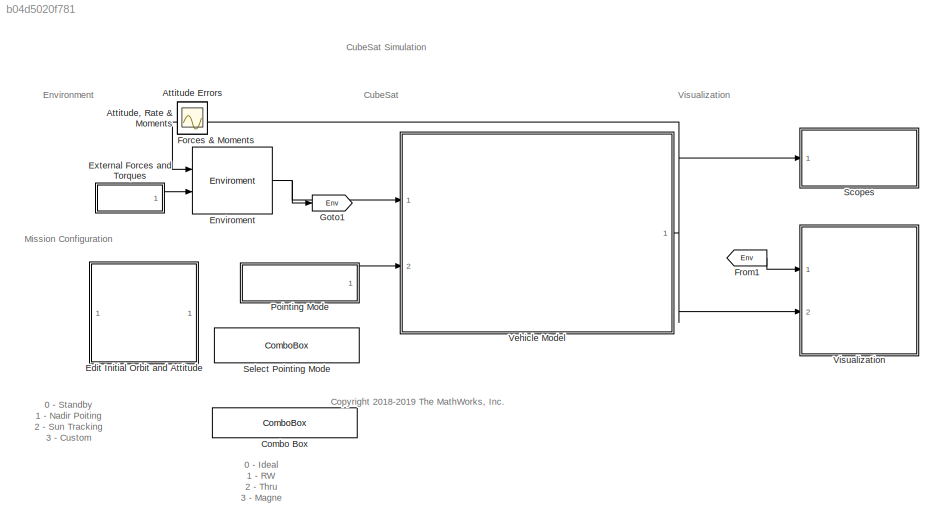
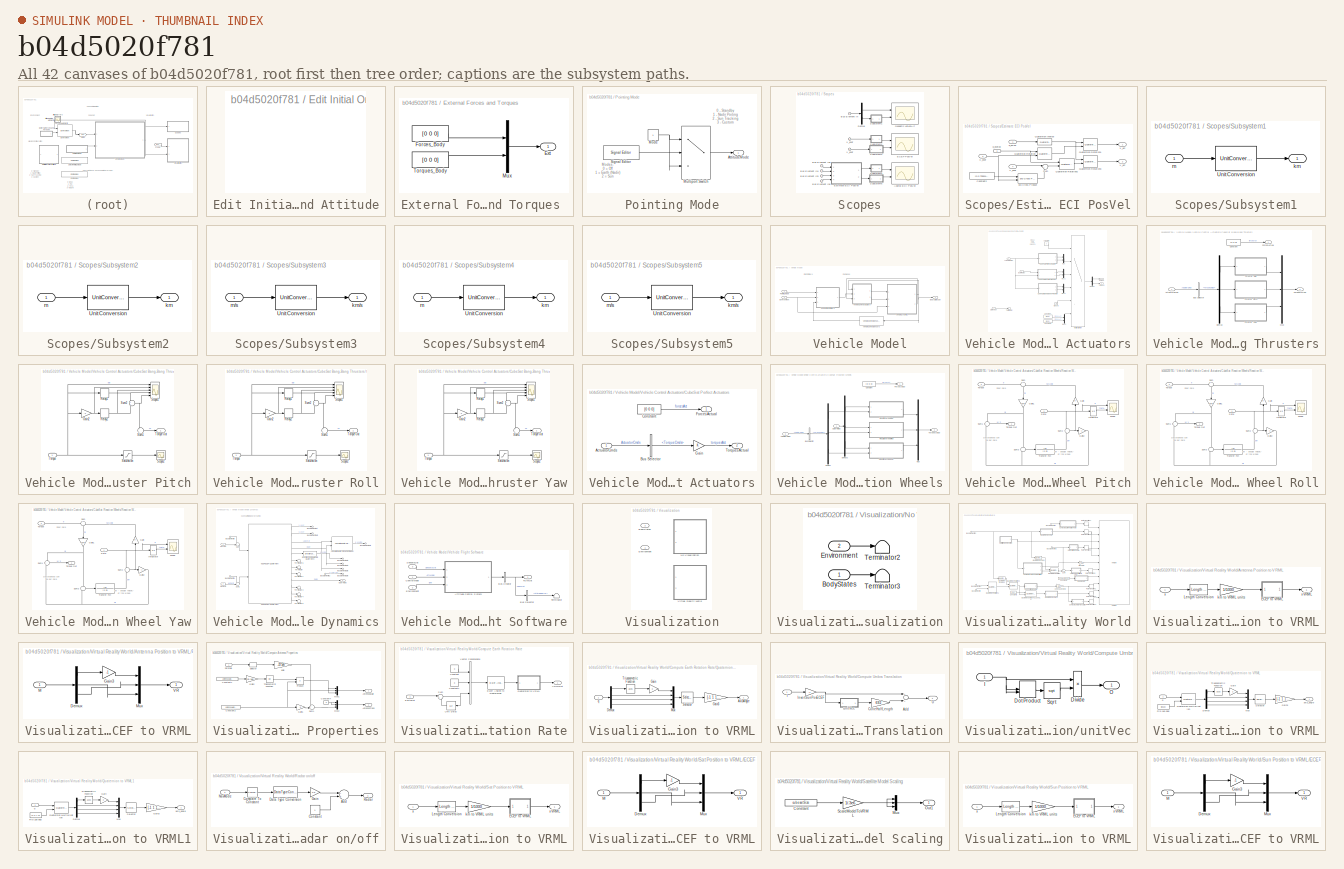
[diagram: thumbnail index - all 42 canvases of the model, root first then tree order]
MODEL slx_b04d5020f781
KIND model
CONFIG AbsTol = auto
CONFIG EnableMultiTasking = on
CONFIG FixedStep = CubeSatTimeStep
CONFIG InitFcn = if evalin('base', 'exist(''variantVisualization'',''var'')') && ...\n        evalin('base', 'variantVisualization == 1') \n    if ~builtin('license','checkout','Virtual_Reality_Toolbox')\n        error(message('aeroblks_cubesat:cubesat:licenseFailAnim'));\n    end\nend\n\nif ~evalin('base','exist(''CubeSatTimeStep'')')\n    assignin('base','CubeSatTimeStep',1);\nend
CONFIG MaxStep = auto
CONFIG MinStep = auto
CONFIG PreLoadFcn = if ~builtin('license','test','Virtual_Reality_Toolbox')\n    assignin('base','variantVisualization',0)\nend
CONFIG RelTol = 1e-3
CONFIG SampleTimeConstraint = Unconstrained
CONFIG Solver = ode3
CONFIG SolverName = ode3
CONFIG StartTime = 0.0
CONFIG StopTime = 1
BLOCK [Scope] Attitude Errors
  Floating = off
  IOType = viewer
  NumInputPorts = 1
  Ports = []
  ScopeSpecificationString = Simulink.scopes.TimeScopeBlockCfg('CurrentConfiguration', extmgr.ConfigurationSet(extmgr.Configuration('Core','General UI',true),extmgr.Configuration('Core','Source UI',true),extmgr.Configuration('Sources','WiredSimulink',true,'DataLoggingVariableName','ScopeData2'),extmgr.Configuration('Visuals','Time Domain',true,'SerializedDisplays',{struct('MinYLimReal','-0.15417','MaxYLimReal','0.83617','YLab...<+1431ch>
BLOCK [Scope] Attitude, Rate & Moments
  Floating = off
  IOType = viewer
  NumInputPorts = 1
  Ports = []
  ScopeSpecificationString = Simulink.scopes.TimeScopeBlockCfg('CurrentConfiguration', extmgr.ConfigurationSet(extmgr.Configuration('Core','General UI',true),extmgr.Configuration('Core','Source UI',true),extmgr.Configuration('Sources','WiredSimulink',true,'DataLoggingVariableName','ScopeData1'),extmgr.Configuration('Visuals','Time Domain',true,'SerializedDisplays',{struct('MinYLimReal','-0.325','MaxYLimReal','2.84637','YLabel...<+2697ch>
BLOCK [ComboBox] Combo Box
  LabelPosition = Hide
  SelectedLabel = Ideal Actuators
BLOCK [SubSystem] Edit Initial Orbit and Attitude
  Ports = []
  RequestExecContextInheritance = off
BLOCK [Reference] Enviroment  REF=asbCubeSatEnvironmentLib/Enviroment
  Ports = [2, 1]
  SourceBlock = asbCubeSatEnvironmentLib/Enviroment
  SourceType = SubSystem
BLOCK [SubSystem] External Forces and Torques 
  Ports = [0, 1]
  RequestExecContextInheritance = off
BLOCK [Outport] External Forces and Torques /Ext
  IconDisplay = Port number
  VectorParamsAs1DForOutWhenUnconnected = off
BLOCK [Constant] External Forces and Torques /Forces_Body
  Value = [0 0 0]
BLOCK [Mux] External Forces and Torques /Mux
  DisplayOption = bar
  Inputs = 2
  Ports = [2, 1]
BLOCK [Constant] External Forces and Torques /Torques_Body
  Value = [0 0 0]
BLOCK [Scope] Forces & Moments
  Floating = off
  IOType = viewer
  NumInputPorts = 1
  Ports = []
  ScopeSpecificationString = Simulink.scopes.TimeScopeBlockCfg('CurrentConfiguration', extmgr.ConfigurationSet(extmgr.Configuration('Core','General UI',true),extmgr.Configuration('Core','Source UI',true),extmgr.Configuration('Sources','WiredSimulink',true,'DataLoggingVariableName','ScopeData1'),extmgr.Configuration('Visuals','Time Domain',true,'SerializedDisplays',{struct('MinYLimReal','-1.32485','MaxYLimReal','9.7866','YLabe...<+2149ch>
BLOCK [From] From1
  GotoTag = Env
BLOCK [Goto] Goto1
  GotoTag = Env
BLOCK [SubSystem] Pointing Mode
  Ports = [0, 1]
  RequestExecContextInheritance = off
BLOCK [Outport] Pointing Mode/AttitudeMode
  IconDisplay = Port number
  VectorParamsAs1DForOutWhenUnconnected = off
BLOCK [Constant] Pointing Mode/Mode
  SampleTime = -1
BLOCK [MultiPortSwitch] Pointing Mode/Multiport Switch
  DataPortIndices = {3, [0,1,2]}
  DataPortOrder = Specify indices
  DiagnosticForDefault = None
  InputSameDT = off
  Ports = [3, 1]
  SaturateOnIntegerOverflow = off
BLOCK [Reference] Pointing Mode/Signal Editor  REF=SignalEditorBlockLib/Signal Editor
  Ports = [0, 1]
  SourceBlock = SignalEditorBlockLib/Signal Editor
  SourceProductBaseCode = SL
  SourceProductName = Simulink
  SourceType = SignalEditor
  UserDataPersistent = on
BLOCK [SubSystem] Scopes
  Ports = [1]
  RequestExecContextInheritance = off
  VariantControl = visOff
BLOCK [Scope] Scopes/Approx ECI PosVel
  Floating = off
  NumInputPorts = 2
  Ports = [2]
  ScopeSpecificationString = Simulink.scopes.TimeScopeBlockCfg('CurrentConfiguration', extmgr.ConfigurationSet(extmgr.Configuration('Core','General UI',true),extmgr.Configuration('Core','Source UI',true),extmgr.Configuration('Sources','WiredSimulink',true,'DataLoggingVariableName','ScopeData1'),extmgr.Configuration('Visuals','Time Domain',true,'SerializedDisplays',{struct('MinYLimReal','-8479.67563','MaxYLimReal','8481.52428'...<+2019ch>
BLOCK [Inport] Scopes/Bus Element In
  IconDisplay = Port number
BLOCK [Inport] Scopes/Bus Element In3
  IconDisplay = Port number
BLOCK [Inport] Scopes/Bus Element In4
  IconDisplay = Port number
BLOCK [Inport] Scopes/Bus Element In5
  IconDisplay = Port number
BLOCK [Inport] Scopes/Bus Element In6
  IconDisplay = Port number
BLOCK [Demux] Scopes/Demux
  DisplayOption = bar
  Outputs = [2 1]
  Ports = [1, 2]
BLOCK [Scope] Scopes/ECEF PosVel
  Floating = off
  NumInputPorts = 2
  Ports = [2]
  ScopeSpecificationString = Simulink.scopes.TimeScopeBlockCfg('CurrentConfiguration', extmgr.ConfigurationSet(extmgr.Configuration('Core','General UI',true),extmgr.Configuration('Core','Source UI',true),extmgr.Configuration('Sources','WiredSimulink',true,'DataLoggingVariableName','ScopeData2'),extmgr.Configuration('Visuals','Time Domain',true,'SerializedDisplays',{struct('MinYLimReal','-8477.4718','MaxYLimReal','8446.48345',...<+2026ch>
BLOCK [SubSystem] Scopes/Estimate ECI PosVel
  Ports = [4, 2]
  RequestExecContextInheritance = off
BLOCK [Reference] Scopes/Estimate ECI PosVel/3x3 Cross Product  REF=sharedutil/3x3 Cross Product
  Ports = [2, 1]
  SourceBlock = sharedutil/3x3 Cross Product
  SourceProductBaseCode = AE
  SourceProductName = Aerospace Blockset
  SourceType = CrossProduct
BLOCK [Constant] Scopes/Estimate ECI PosVel/Constant2
  Value = [0 0 7292115e-11]
BLOCK [Reference] Scopes/Estimate ECI PosVel/Quaternion Inverse  REF=aerolibutil/Quaternion
Inverse
  Ports = [1, 1]
  SourceBlock = aerolibutil/Quaternion\nInverse
  SourceProductBaseCode = AE
  SourceProductName = Aerospace Blockset
  SourceType = Quaternion Inverse
BLOCK [Reference] Scopes/Estimate ECI PosVel/Quaternion Rotation  REF=aerolibutil/Quaternion
Rotation
  Ports = [2, 1]
  SourceBlock = aerolibutil/Quaternion\nRotation
  SourceProductBaseCode = AE
  SourceProductName = Aerospace Blockset
  SourceType = Quaternion Rotation
BLOCK [Reference] Scopes/Estimate ECI PosVel/Quaternion Rotation1  REF=aerolibutil/Quaternion
Rotation
  Ports = [2, 1]
  SourceBlock = aerolibutil/Quaternion\nRotation
  SourceProductBaseCode = AE
  SourceProductName = Aerospace Blockset
  SourceType = Quaternion Rotation
BLOCK [Reference] Scopes/Estimate ECI PosVel/Quaternion Rotation2  REF=aerolibutil/Quaternion
Rotation
  Ports = [2, 1]
  SourceBlock = aerolibutil/Quaternion\nRotation
  SourceProductBaseCode = AE
  SourceProductName = Aerospace Blockset
  SourceType = Quaternion Rotation
BLOCK [Reference] Scopes/Estimate ECI PosVel/Quaternion Rotation3  REF=aerolibutil/Quaternion
Rotation
  Ports = [2, 1]
  SourceBlock = aerolibutil/Quaternion\nRotation
  SourceProductBaseCode = AE
  SourceProductName = Aerospace Blockset
  SourceType = Quaternion Rotation
BLOCK [Sum] Scopes/Estimate ECI PosVel/Sum
  IconShape = round
  InputSameDT = off
  Inputs = |++
  OutDataTypeStr = Inherit: Inherit via internal rule
  Ports = [2, 1]
  SaturateOnIntegerOverflow = off
BLOCK [Inport] Scopes/Estimate ECI PosVel/V_ecef
  IconDisplay = Port number
  Port = 4
BLOCK [Outport] Scopes/Estimate ECI PosVel/V_eci
  IconDisplay = Port number
  Port = 2
  VectorParamsAs1DForOutWhenUnconnected = off
BLOCK [Inport] Scopes/Estimate ECI PosVel/X_ecef
  IconDisplay = Port number
  Port = 3
BLOCK [Outport] Scopes/Estimate ECI PosVel/X_eci
  IconDisplay = Port number
  VectorParamsAs1DForOutWhenUnconnected = off
BLOCK [Inport] Scopes/Estimate ECI PosVel/q_ecef2b
  IconDisplay = Port number
  Port = 2
BLOCK [Inport] Scopes/Estimate ECI PosVel/q_eci2b
  IconDisplay = Port number
BLOCK [Scope] Scopes/Geodetic LatLonAlt
  Floating = off
  NumInputPorts = 2
  Ports = [2]
  ScopeSpecificationString = Simulink.scopes.TimeScopeBlockCfg('CurrentConfiguration', extmgr.ConfigurationSet(extmgr.Configuration('Core','General UI',true),extmgr.Configuration('Core','Source UI',true),extmgr.Configuration('Sources','WiredSimulink',true),extmgr.Configuration('Visuals','Time Domain',true,'SerializedDisplays',{struct('MinYLimReal','-224.99763','MaxYLimReal','224.99581','YLabelReal','\mu \iota (deg)','MinYLimM...<+1977ch>
BLOCK [SubSystem] Scopes/Subsystem1
  Ports = [1, 1]
  RequestExecContextInheritance = off
BLOCK [UnitConversion] Scopes/Subsystem1/Unit Conversion
BLOCK [Outport] Scopes/Subsystem1/km
  IconDisplay = Port number
  Unit = km
  VectorParamsAs1DForOutWhenUnconnected = off
BLOCK [Inport] Scopes/Subsystem1/m
  IconDisplay = Port number
  Unit = m
BLOCK [SubSystem] Scopes/Subsystem2
  Ports = [1, 1]
  RequestExecContextInheritance = off
BLOCK [UnitConversion] Scopes/Subsystem2/Unit Conversion
BLOCK [Outport] Scopes/Subsystem2/km
  IconDisplay = Port number
  Unit = km
  VectorParamsAs1DForOutWhenUnconnected = off
BLOCK [Inport] Scopes/Subsystem2/m
  IconDisplay = Port number
  Unit = m
BLOCK [SubSystem] Scopes/Subsystem3
  Ports = [1, 1]
  RequestExecContextInheritance = off
BLOCK [UnitConversion] Scopes/Subsystem3/Unit Conversion
BLOCK [Outport] Scopes/Subsystem3/km//s
  IconDisplay = Port number
  Unit = km/s
  VectorParamsAs1DForOutWhenUnconnected = off
BLOCK [Inport] Scopes/Subsystem3/m//s
  IconDisplay = Port number
  Unit = m/s
BLOCK [SubSystem] Scopes/Subsystem4
  Ports = [1, 1]
  RequestExecContextInheritance = off
BLOCK [UnitConversion] Scopes/Subsystem4/Unit Conversion
BLOCK [Outport] Scopes/Subsystem4/km
  IconDisplay = Port number
  Unit = km
  VectorParamsAs1DForOutWhenUnconnected = off
BLOCK [Inport] Scopes/Subsystem4/m
  IconDisplay = Port number
  Unit = m
BLOCK [SubSystem] Scopes/Subsystem5
  Ports = [1, 1]
  RequestExecContextInheritance = off
BLOCK [UnitConversion] Scopes/Subsystem5/Unit Conversion
BLOCK [Outport] Scopes/Subsystem5/km//s
  IconDisplay = Port number
  Unit = km/s
  VectorParamsAs1DForOutWhenUnconnected = off
BLOCK [Inport] Scopes/Subsystem5/m//s
  IconDisplay = Port number
  Unit = m/s
BLOCK [Inport] Scopes/V_ecef
  IconDisplay = Port number
BLOCK [Inport] Scopes/X_ecef
  IconDisplay = Port number
BLOCK [ComboBox] Select Pointing Mode
  LabelPosition = Hide
  SelectedLabel = Nadir Pointing (Earth)
BLOCK [SubSystem] Vehicle Model
  Ports = [2, 1]
  RequestExecContextInheritance = off
BLOCK [Outport] Vehicle Model/BodyStatesOut
  IconDisplay = Port number
  VectorParamsAs1DForOutWhenUnconnected = off
BLOCK [Inport] Vehicle Model/Environment
  IconDisplay = Port number
BLOCK [Inport] Vehicle Model/Pointing Mode
  IconDisplay = Port number
  Port = 2
BLOCK [SubSystem] Vehicle Model/Vehicle Control Actuators
  AncestorBlock = asbCubeSatActuatorsLib/Vehicle Control\nActuators
  Ports = [3, 2]
  RequestExecContextInheritance = off
BLOCK [Outport] Vehicle Model/Vehicle Control Actuators/ Forces
  IconDisplay = Port number
  VectorParamsAs1DForOutWhenUnconnected = off
BLOCK [Outport] Vehicle Model/Vehicle Control Actuators/ Torques
  IconDisplay = Port number
  Port = 2
  VectorParamsAs1DForOutWhenUnconnected = off
BLOCK [Inport] Vehicle Model/Vehicle Control Actuators/ActuatorCmds
  IconDisplay = Port number
  Port = 2
BLOCK [Constant] Vehicle Model/Vehicle Control Actuators/Actuators
  Value = 0
BLOCK [Constant] Vehicle Model/Vehicle Control Actuators/Constant
  Value = [0 0 0]
BLOCK [Constant] Vehicle Model/Vehicle Control Actuators/Constant1
  Value = [0 0 0]
BLOCK [SubSystem] Vehicle Model/Vehicle Control Actuators/CubeSat Bang-Bang Thrusters
  AncestorBlock = asbCubeSatBlockLib/Actuators/CubeSat Perfect Actuators
  Ports = [1, 2]
  RequestExecContextInheritance = off
BLOCK [Inport] Vehicle Model/Vehicle Control Actuators/CubeSat Bang-Bang Thrusters/ActuatorCmds
  IconDisplay = Port number
  OutDataTypeStr = Bus: FCSOutBus
BLOCK [BusSelector] Vehicle Model/Vehicle Control Actuators/CubeSat Bang-Bang Thrusters/Bus Selector
  OutputAsBus = off
  OutputSignals = ACSOut.TorqueCmds
  Ports = [1, 1]
BLOCK [Constant] Vehicle Model/Vehicle Control Actuators/CubeSat Bang-Bang Thrusters/Constant
  Value = [0 0 0]
BLOCK [Demux] Vehicle Model/Vehicle Control Actuators/CubeSat Bang-Bang Thrusters/Demux
  DisplayOption = bar
  Outputs = 3
  Ports = [1, 3]
BLOCK [Outport] Vehicle Model/Vehicle Control Actuators/CubeSat Bang-Bang Thrusters/ForcesActual
  IconDisplay = Port number
  VectorParamsAs1DForOutWhenUnconnected = off
BLOCK [Mux] Vehicle Model/Vehicle Control Actuators/CubeSat Bang-Bang Thrusters/Mux
  DisplayOption = bar
  Inputs = 3
  Ports = [3, 1]
BLOCK [SubSystem] Vehicle Model/Vehicle Control Actuators/CubeSat Bang-Bang Thrusters/Thruster Pitch
  Ports = [1, 1]
  RequestExecContextInheritance = off
BLOCK [Gain] Vehicle Model/Vehicle Control Actuators/CubeSat Bang-Bang Thrusters/Thruster Pitch/Gain2
  Gain = -1
  OutDataTypeStr = Inherit: Inherit via internal rule
  ParamDataTypeStr = Inherit: Inherit via internal rule
  SaturateOnIntegerOverflow = off
BLOCK [Relay] Vehicle Model/Vehicle Control Actuators/CubeSat Bang-Bang Thrusters/Thruster Pitch/Relay1
  OffSwitchValue = a0
  OnOutputValue = thrust
  OnSwitchValue = a1
BLOCK [Relay] Vehicle Model/Vehicle Control Actuators/CubeSat Bang-Bang Thrusters/Thruster Pitch/Relay2
  OffSwitchValue = a0
  OnOutputValue = -thrust
  OnSwitchValue = a1
BLOCK [Saturate] Vehicle Model/Vehicle Control Actuators/CubeSat Bang-Bang Thrusters/Thruster Pitch/Saturation
  InputPortMap = u0
  LowerLimit = -mag_sat
  Ports = [1, 1]
  UpperLimit = mag_sat
BLOCK [Scope] Vehicle Model/Vehicle Control Actuators/CubeSat Bang-Bang Thrusters/Thruster Pitch/Scope1
  Floating = off
  NumInputPorts = 5
  Ports = [5]
  ScopeSpecificationString = Simulink.scopes.TimeScopeBlockCfg('CurrentConfiguration', extmgr.ConfigurationSet(extmgr.Configuration('Core','General UI',true),extmgr.Configuration('Core','Source UI',true),extmgr.Configuration('Sources','WiredSimulink',true,'DataLoggingVariableName','ScopeData2'),extmgr.Configuration('Visuals','Time Domain',true,'SerializedDisplays',{struct('MinYLimReal','-5012.5','MaxYLimReal','5012.5','YLabel...<+1494ch>
BLOCK [Scope] Vehicle Model/Vehicle Control Actuators/CubeSat Bang-Bang Thrusters/Thruster Pitch/Scope2
  Floating = off
  NumInputPorts = 1
  Ports = [1]
  ScopeSpecificationString = Simulink.scopes.TimeScopeBlockCfg('CurrentConfiguration', extmgr.ConfigurationSet(extmgr.Configuration('Core','General UI',true),extmgr.Configuration('Core','Source UI',true),extmgr.Configuration('Sources','WiredSimulink',true,'DataLoggingVariableName','ScopeData3'),extmgr.Configuration('Visuals','Time Domain',true,'SerializedDisplays',{struct('MinYLimReal','-0.0125','MaxYLimReal','0.0125','YLabel...<+1392ch>  <repeated x3 — deduplicated; at blocks: Scope2>
BLOCK [Sum] Vehicle Model/Vehicle Control Actuators/CubeSat Bang-Bang Thrusters/Thruster Pitch/Sum1
  IconShape = round
  InputSameDT = off
  Inputs = -|-
  OutDataTypeStr = Inherit: Inherit via internal rule
  Ports = [2, 1]
  SaturateOnIntegerOverflow = off
BLOCK [Sum] Vehicle Model/Vehicle Control Actuators/CubeSat Bang-Bang Thrusters/Thruster Pitch/Sum2
  IconShape = round
  InputSameDT = off
  Inputs = +|+
  OutDataTypeStr = Inherit: Inherit via internal rule
  Ports = [2, 1]
  SaturateOnIntegerOverflow = off
BLOCK [Inport] Vehicle Model/Vehicle Control Actuators/CubeSat Bang-Bang Thrusters/Thruster Pitch/Torque
  IconDisplay = Port number
BLOCK [Outport] Vehicle Model/Vehicle Control Actuators/CubeSat Bang-Bang Thrusters/Thruster Pitch/Torque Out
  IconDisplay = Port number
BLOCK [SubSystem] Vehicle Model/Vehicle Control Actuators/CubeSat Bang-Bang Thrusters/Thruster Roll
  Ports = [1, 1]
  RequestExecContextInheritance = off
BLOCK [Gain] Vehicle Model/Vehicle Control Actuators/CubeSat Bang-Bang Thrusters/Thruster Roll/Gain2
  Gain = -1
  OutDataTypeStr = Inherit: Inherit via internal rule
  ParamDataTypeStr = Inherit: Inherit via internal rule
  SaturateOnIntegerOverflow = off
BLOCK [Relay] Vehicle Model/Vehicle Control Actuators/CubeSat Bang-Bang Thrusters/Thruster Roll/Relay1
  OffSwitchValue = a0
  OnOutputValue = thrust
  OnSwitchValue = a1
BLOCK [Relay] Vehicle Model/Vehicle Control Actuators/CubeSat Bang-Bang Thrusters/Thruster Roll/Relay2
  OffSwitchValue = a0
  OnOutputValue = -thrust
  OnSwitchValue = a1
BLOCK [Saturate] Vehicle Model/Vehicle Control Actuators/CubeSat Bang-Bang Thrusters/Thruster Roll/Saturation
  InputPortMap = u0
  LowerLimit = -mag_sat
  Ports = [1, 1]
  UpperLimit = mag_sat
BLOCK [Scope] Vehicle Model/Vehicle Control Actuators/CubeSat Bang-Bang Thrusters/Thruster Roll/Scope1
  Floating = off
  NumInputPorts = 5
  Ports = [5]
  ScopeSpecificationString = Simulink.scopes.TimeScopeBlockCfg('CurrentConfiguration', extmgr.ConfigurationSet(extmgr.Configuration('Core','General UI',true),extmgr.Configuration('Core','Source UI',true),extmgr.Configuration('Sources','WiredSimulink',true,'DataLoggingVariableName','ScopeData2'),extmgr.Configuration('Visuals','Time Domain',true,'SerializedDisplays',{struct('MinYLimReal','-0.07852','MaxYLimReal','0.07852','YLab...<+1540ch>
BLOCK [Scope] Vehicle Model/Vehicle Control Actuators/CubeSat Bang-Bang Thrusters/Thruster Roll/Scope2
  Floating = off
  NumInputPorts = 1
  Ports = [1]
BLOCK [Sum] Vehicle Model/Vehicle Control Actuators/CubeSat Bang-Bang Thrusters/Thruster Roll/Sum1
  IconShape = round
  InputSameDT = off
  Inputs = -|-
  OutDataTypeStr = Inherit: Inherit via internal rule
  Ports = [2, 1]
  SaturateOnIntegerOverflow = off
BLOCK [Sum] Vehicle Model/Vehicle Control Actuators/CubeSat Bang-Bang Thrusters/Thruster Roll/Sum2
  IconShape = round
  InputSameDT = off
  Inputs = +|+
  OutDataTypeStr = Inherit: Inherit via internal rule
  Ports = [2, 1]
  SaturateOnIntegerOverflow = off
BLOCK [Inport] Vehicle Model/Vehicle Control Actuators/CubeSat Bang-Bang Thrusters/Thruster Roll/Torque
  IconDisplay = Port number
BLOCK [Outport] Vehicle Model/Vehicle Control Actuators/CubeSat Bang-Bang Thrusters/Thruster Roll/Torque Out
  IconDisplay = Port number
BLOCK [SubSystem] Vehicle Model/Vehicle Control Actuators/CubeSat Bang-Bang Thrusters/Thruster Yaw
  Ports = [1, 1]
  RequestExecContextInheritance = off
BLOCK [Gain] Vehicle Model/Vehicle Control Actuators/CubeSat Bang-Bang Thrusters/Thruster Yaw/Gain2
  Gain = -1
  OutDataTypeStr = Inherit: Inherit via internal rule
  ParamDataTypeStr = Inherit: Inherit via internal rule
  SaturateOnIntegerOverflow = off
BLOCK [Relay] Vehicle Model/Vehicle Control Actuators/CubeSat Bang-Bang Thrusters/Thruster Yaw/Relay1
  OffSwitchValue = a0
  OnOutputValue = thrust
  OnSwitchValue = a1
BLOCK [Relay] Vehicle Model/Vehicle Control Actuators/CubeSat Bang-Bang Thrusters/Thruster Yaw/Relay2
  OffSwitchValue = a0
  OnOutputValue = -thrust
  OnSwitchValue = a1
BLOCK [Saturate] Vehicle Model/Vehicle Control Actuators/CubeSat Bang-Bang Thrusters/Thruster Yaw/Saturation
  InputPortMap = u0
  LowerLimit = -mag_sat
  Ports = [1, 1]
  UpperLimit = mag_sat
BLOCK [Scope] Vehicle Model/Vehicle Control Actuators/CubeSat Bang-Bang Thrusters/Thruster Yaw/Scope1
  Floating = off
  NumInputPorts = 5
  Ports = [5]
  ScopeSpecificationString = Simulink.scopes.TimeScopeBlockCfg('CurrentConfiguration', extmgr.ConfigurationSet(extmgr.Configuration('Core','General UI',true),extmgr.Configuration('Core','Source UI',true),extmgr.Configuration('Sources','WiredSimulink',true,'DataLoggingVariableName','ScopeData2'),extmgr.Configuration('Visuals','Time Domain',true,'SerializedDisplays',{struct('MinYLimReal','-5012.5','MaxYLimReal','5012.5','YLabel...<+1494ch>
BLOCK [Scope] Vehicle Model/Vehicle Control Actuators/CubeSat Bang-Bang Thrusters/Thruster Yaw/Scope2
  Floating = off
  NumInputPorts = 1
  Ports = [1]
BLOCK [Sum] Vehicle Model/Vehicle Control Actuators/CubeSat Bang-Bang Thrusters/Thruster Yaw/Sum1
  IconShape = round
  InputSameDT = off
  Inputs = -|-
  OutDataTypeStr = Inherit: Inherit via internal rule
  Ports = [2, 1]
  SaturateOnIntegerOverflow = off
BLOCK [Sum] Vehicle Model/Vehicle Control Actuators/CubeSat Bang-Bang Thrusters/Thruster Yaw/Sum2
  IconShape = round
  InputSameDT = off
  Inputs = +|+
  OutDataTypeStr = Inherit: Inherit via internal rule
  Ports = [2, 1]
  SaturateOnIntegerOverflow = off
BLOCK [Inport] Vehicle Model/Vehicle Control Actuators/CubeSat Bang-Bang Thrusters/Thruster Yaw/Torque
  IconDisplay = Port number
BLOCK [Outport] Vehicle Model/Vehicle Control Actuators/CubeSat Bang-Bang Thrusters/Thruster Yaw/Torque Out
  IconDisplay = Port number
BLOCK [Outport] Vehicle Model/Vehicle Control Actuators/CubeSat Bang-Bang Thrusters/TorquesActual
  IconDisplay = Port number
  Port = 2
  VectorParamsAs1DForOutWhenUnconnected = off
BLOCK [SubSystem] Vehicle Model/Vehicle Control Actuators/CubeSat Perfect Actuators
  AncestorBlock = asbCubeSatBlockLib/Actuators/CubeSat Perfect Actuators
  Ports = [1, 2]
  RequestExecContextInheritance = off
BLOCK [Inport] Vehicle Model/Vehicle Control Actuators/CubeSat Perfect Actuators/ActuatorCmds
  IconDisplay = Port number
  OutDataTypeStr = Bus: FCSOutBus
BLOCK [BusSelector] Vehicle Model/Vehicle Control Actuators/CubeSat Perfect Actuators/Bus Selector
  OutputAsBus = off
  OutputSignals = ACSOut.TorqueCmds
  Ports = [1, 1]
BLOCK [Constant] Vehicle Model/Vehicle Control Actuators/CubeSat Perfect Actuators/Constant
  Value = [0 0 0]
BLOCK [Outport] Vehicle Model/Vehicle Control Actuators/CubeSat Perfect Actuators/ForcesActual
  IconDisplay = Port number
  VectorParamsAs1DForOutWhenUnconnected = off
BLOCK [Gain] Vehicle Model/Vehicle Control Actuators/CubeSat Perfect Actuators/Gain
  OutDataTypeStr = Inherit: Inherit via internal rule
  ParamDataTypeStr = Inherit: Inherit via internal rule
  SaturateOnIntegerOverflow = off
BLOCK [Outport] Vehicle Model/Vehicle Control Actuators/CubeSat Perfect Actuators/TorquesActual
  IconDisplay = Port number
  Port = 2
  VectorParamsAs1DForOutWhenUnconnected = off
BLOCK [SubSystem] Vehicle Model/Vehicle Control Actuators/CubeSat Reaction Wheels
  AncestorBlock = asbCubeSatBlockLib/Actuators/CubeSat Perfect Actuators
  Ports = [2, 2]
  RequestExecContextInheritance = off
BLOCK [Inport] Vehicle Model/Vehicle Control Actuators/CubeSat Reaction Wheels/ActuatorCmds
  IconDisplay = Port number
  OutDataTypeStr = Bus: FCSOutBus
  Port = 2
BLOCK [BusSelector] Vehicle Model/Vehicle Control Actuators/CubeSat Reaction Wheels/Bus Selector
  OutputAsBus = off
  OutputSignals = ACSOut.TorqueCmds
  Ports = [1, 1]
BLOCK [Constant] Vehicle Model/Vehicle Control Actuators/CubeSat Reaction Wheels/Constant
  Value = [0 0 0]
BLOCK [Demux] Vehicle Model/Vehicle Control Actuators/CubeSat Reaction Wheels/Demux
  DisplayOption = bar
  Outputs = 3
  Ports = [1, 3]
BLOCK [Demux] Vehicle Model/Vehicle Control Actuators/CubeSat Reaction Wheels/Demux2
  DisplayOption = bar
  Outputs = 3
  Ports = [1, 3]
BLOCK [Inport] Vehicle Model/Vehicle Control Actuators/CubeSat Reaction Wheels/Euler Rates
  IconDisplay = Port number
BLOCK [Outport] Vehicle Model/Vehicle Control Actuators/CubeSat Reaction Wheels/ForcesActual
  IconDisplay = Port number
  VectorParamsAs1DForOutWhenUnconnected = off
BLOCK [Mux] Vehicle Model/Vehicle Control Actuators/CubeSat Reaction Wheels/Mux
  DisplayOption = bar
  Inputs = 3
  Ports = [3, 1]
BLOCK [SubSystem] Vehicle Model/Vehicle Control Actuators/CubeSat Reaction Wheels/Reaction Wheel Pitch
  Ports = [2, 1]
  RequestExecContextInheritance = off
BLOCK [Gain] Vehicle Model/Vehicle Control Actuators/CubeSat Reaction Wheels/Reaction Wheel Pitch/Gain
  Gain = N
  OutDataTypeStr = Inherit: Inherit via internal rule
  ParamDataTypeStr = Inherit: Inherit via internal rule
  SaturateOnIntegerOverflow = off
BLOCK [Gain] Vehicle Model/Vehicle Control Actuators/CubeSat Reaction Wheels/Reaction Wheel Pitch/Gain1
  Gain = N/R
  OutDataTypeStr = Inherit: Inherit via internal rule
  ParamDataTypeStr = Inherit: Inherit via internal rule
  SaturateOnIntegerOverflow = off
BLOCK [Gain] Vehicle Model/Vehicle Control Actuators/CubeSat Reaction Wheels/Reaction Wheel Pitch/Gain2
  Gain = -c
  OutDataTypeStr = Inherit: Inherit via internal rule
  ParamDataTypeStr = Inherit: Inherit via internal rule
  SaturateOnIntegerOverflow = off
BLOCK [Integrator] Vehicle Model/Vehicle Control Actuators/CubeSat Reaction Wheels/Reaction Wheel Pitch/Integrator
  Ports = [1, 1]
BLOCK [Inport] Vehicle Model/Vehicle Control Actuators/CubeSat Reaction Wheels/Reaction Wheel Pitch/Rate
  IconDisplay = Port number
BLOCK [Scope] Vehicle Model/Vehicle Control Actuators/CubeSat Reaction Wheels/Reaction Wheel Pitch/Scope
  Floating = off
  NumInputPorts = 2
  Ports = [2]
  ScopeSpecificationString = Simulink.scopes.TimeScopeBlockCfg('CurrentConfiguration', extmgr.ConfigurationSet(extmgr.Configuration('Core','General UI',true),extmgr.Configuration('Core','Source UI',true),extmgr.Configuration('Sources','WiredSimulink',true,'DataLoggingVariableName','ScopeData2'),extmgr.Configuration('Visuals','Time Domain',true,'SerializedDisplays',{struct('MinYLimReal','-0.04089','MaxYLimReal','0.04884','YLab...<+2028ch>
BLOCK [Sum] Vehicle Model/Vehicle Control Actuators/CubeSat Reaction Wheels/Reaction Wheel Pitch/Sum
  IconShape = round
  InputSameDT = off
  Inputs = +|-
  OutDataTypeStr = Inherit: Inherit via internal rule
  Ports = [2, 1]
  SaturateOnIntegerOverflow = off
BLOCK [Sum] Vehicle Model/Vehicle Control Actuators/CubeSat Reaction Wheels/Reaction Wheel Pitch/Sum1
  IconShape = round
  InputSameDT = off
  Inputs = +|+
  OutDataTypeStr = Inherit: Inherit via internal rule
  Ports = [2, 1]
  SaturateOnIntegerOverflow = off
BLOCK [Sum] Vehicle Model/Vehicle Control Actuators/CubeSat Reaction Wheels/Reaction Wheel Pitch/Sum2
  IconShape = round
  InputSameDT = off
  Inputs = +|-
  OutDataTypeStr = Inherit: Inherit via internal rule
  Ports = [2, 1]
  SaturateOnIntegerOverflow = off
BLOCK [Sum] Vehicle Model/Vehicle Control Actuators/CubeSat Reaction Wheels/Reaction Wheel Pitch/Sum3
  IconShape = round
  InputSameDT = off
  Inputs = -|-
  OutDataTypeStr = Inherit: Inherit via internal rule
  Ports = [2, 1]
  SaturateOnIntegerOverflow = off
BLOCK [Inport] Vehicle Model/Vehicle Control Actuators/CubeSat Reaction Wheels/Reaction Wheel Pitch/Torque
  IconDisplay = Port number
  Port = 2
BLOCK [Outport] Vehicle Model/Vehicle Control Actuators/CubeSat Reaction Wheels/Reaction Wheel Pitch/Torque Out
  IconDisplay = Port number
BLOCK [TransferFcn] Vehicle Model/Vehicle Control Actuators/CubeSat Reaction Wheels/Reaction Wheel Pitch/Transfer Fcn
  Denominator = [J 0]
BLOCK [SubSystem] Vehicle Model/Vehicle Control Actuators/CubeSat Reaction Wheels/Reaction Wheel Roll
  Ports = [2, 1]
  RequestExecContextInheritance = off
BLOCK [Gain] Vehicle Model/Vehicle Control Actuators/CubeSat Reaction Wheels/Reaction Wheel Roll/Gain
  Gain = N
  OutDataTypeStr = Inherit: Inherit via internal rule
  ParamDataTypeStr = Inherit: Inherit via internal rule
  SaturateOnIntegerOverflow = off
BLOCK [Gain] Vehicle Model/Vehicle Control Actuators/CubeSat Reaction Wheels/Reaction Wheel Roll/Gain1
  Gain = N/R
  OutDataTypeStr = Inherit: Inherit via internal rule
  ParamDataTypeStr = Inherit: Inherit via internal rule
  SaturateOnIntegerOverflow = off
BLOCK [Gain] Vehicle Model/Vehicle Control Actuators/CubeSat Reaction Wheels/Reaction Wheel Roll/Gain2
  Gain = -c
  OutDataTypeStr = Inherit: Inherit via internal rule
  ParamDataTypeStr = Inherit: Inherit via internal rule
  SaturateOnIntegerOverflow = off
BLOCK [Integrator] Vehicle Model/Vehicle Control Actuators/CubeSat Reaction Wheels/Reaction Wheel Roll/Integrator
  Ports = [1, 1]
BLOCK [Inport] Vehicle Model/Vehicle Control Actuators/CubeSat Reaction Wheels/Reaction Wheel Roll/Rate
  IconDisplay = Port number
BLOCK [Scope] Vehicle Model/Vehicle Control Actuators/CubeSat Reaction Wheels/Reaction Wheel Roll/Scope
  Floating = off
  NumInputPorts = 2
  Ports = [2]
  ScopeSpecificationString = Simulink.scopes.TimeScopeBlockCfg('CurrentConfiguration', extmgr.ConfigurationSet(extmgr.Configuration('Core','General UI',true),extmgr.Configuration('Core','Source UI',true),extmgr.Configuration('Sources','WiredSimulink',true,'DataLoggingVariableName','ScopeData1'),extmgr.Configuration('Visuals','Time Domain',true,'SerializedDisplays',{struct('MinYLimReal','-0.04089','MaxYLimReal','0.04884','YLab...<+2028ch>
BLOCK [Sum] Vehicle Model/Vehicle Control Actuators/CubeSat Reaction Wheels/Reaction Wheel Roll/Sum
  IconShape = round
  InputSameDT = off
  Inputs = +|-
  OutDataTypeStr = Inherit: Inherit via internal rule
  Ports = [2, 1]
  SaturateOnIntegerOverflow = off
BLOCK [Sum] Vehicle Model/Vehicle Control Actuators/CubeSat Reaction Wheels/Reaction Wheel Roll/Sum1
  IconShape = round
  InputSameDT = off
  Inputs = +|+
  OutDataTypeStr = Inherit: Inherit via internal rule
  Ports = [2, 1]
  SaturateOnIntegerOverflow = off
BLOCK [Sum] Vehicle Model/Vehicle Control Actuators/CubeSat Reaction Wheels/Reaction Wheel Roll/Sum2
  IconShape = round
  InputSameDT = off
  Inputs = +|-
  OutDataTypeStr = Inherit: Inherit via internal rule
  Ports = [2, 1]
  SaturateOnIntegerOverflow = off
BLOCK [Sum] Vehicle Model/Vehicle Control Actuators/CubeSat Reaction Wheels/Reaction Wheel Roll/Sum3
  IconShape = round
  InputSameDT = off
  Inputs = -|-
  OutDataTypeStr = Inherit: Inherit via internal rule
  Ports = [2, 1]
  SaturateOnIntegerOverflow = off
BLOCK [Inport] Vehicle Model/Vehicle Control Actuators/CubeSat Reaction Wheels/Reaction Wheel Roll/Torque
  IconDisplay = Port number
  Port = 2
BLOCK [Outport] Vehicle Model/Vehicle Control Actuators/CubeSat Reaction Wheels/Reaction Wheel Roll/Torque Out
  IconDisplay = Port number
BLOCK [TransferFcn] Vehicle Model/Vehicle Control Actuators/CubeSat Reaction Wheels/Reaction Wheel Roll/Transfer Fcn
  Denominator = [J 0]
BLOCK [SubSystem] Vehicle Model/Vehicle Control Actuators/CubeSat Reaction Wheels/Reaction Wheel Yaw
  Ports = [2, 1]
  RequestExecContextInheritance = off
BLOCK [Gain] Vehicle Model/Vehicle Control Actuators/CubeSat Reaction Wheels/Reaction Wheel Yaw/Gain
  Gain = N
  OutDataTypeStr = Inherit: Inherit via internal rule
  ParamDataTypeStr = Inherit: Inherit via internal rule
  SaturateOnIntegerOverflow = off
BLOCK [Gain] Vehicle Model/Vehicle Control Actuators/CubeSat Reaction Wheels/Reaction Wheel Yaw/Gain1
  Gain = N/R
  OutDataTypeStr = Inherit: Inherit via internal rule
  ParamDataTypeStr = Inherit: Inherit via internal rule
  SaturateOnIntegerOverflow = off
BLOCK [Gain] Vehicle Model/Vehicle Control Actuators/CubeSat Reaction Wheels/Reaction Wheel Yaw/Gain2
  Gain = -c
  OutDataTypeStr = Inherit: Inherit via internal rule
  ParamDataTypeStr = Inherit: Inherit via internal rule
  SaturateOnIntegerOverflow = off
BLOCK [Integrator] Vehicle Model/Vehicle Control Actuators/CubeSat Reaction Wheels/Reaction Wheel Yaw/Integrator
  Ports = [1, 1]
BLOCK [Inport] Vehicle Model/Vehicle Control Actuators/CubeSat Reaction Wheels/Reaction Wheel Yaw/Rate
  IconDisplay = Port number
BLOCK [Scope] Vehicle Model/Vehicle Control Actuators/CubeSat Reaction Wheels/Reaction Wheel Yaw/Scope
  Floating = off
  NumInputPorts = 2
  Ports = [2]
  ScopeSpecificationString = Simulink.scopes.TimeScopeBlockCfg('CurrentConfiguration', extmgr.ConfigurationSet(extmgr.Configuration('Core','General UI',true),extmgr.Configuration('Core','Source UI',true),extmgr.Configuration('Sources','WiredSimulink',true,'DataLoggingVariableName','ScopeData3'),extmgr.Configuration('Visuals','Time Domain',true,'SerializedDisplays',{struct('MinYLimReal','-0.04089','MaxYLimReal','0.04884','YLab...<+2028ch>
BLOCK [Sum] Vehicle Model/Vehicle Control Actuators/CubeSat Reaction Wheels/Reaction Wheel Yaw/Sum
  IconShape = round
  InputSameDT = off
  Inputs = +|-
  OutDataTypeStr = Inherit: Inherit via internal rule
  Ports = [2, 1]
  SaturateOnIntegerOverflow = off
BLOCK [Sum] Vehicle Model/Vehicle Control Actuators/CubeSat Reaction Wheels/Reaction Wheel Yaw/Sum1
  IconShape = round
  InputSameDT = off
  Inputs = +|+
  OutDataTypeStr = Inherit: Inherit via internal rule
  Ports = [2, 1]
  SaturateOnIntegerOverflow = off
BLOCK [Sum] Vehicle Model/Vehicle Control Actuators/CubeSat Reaction Wheels/Reaction Wheel Yaw/Sum2
  IconShape = round
  InputSameDT = off
  Inputs = +|-
  OutDataTypeStr = Inherit: Inherit via internal rule
  Ports = [2, 1]
  SaturateOnIntegerOverflow = off
BLOCK [Sum] Vehicle Model/Vehicle Control Actuators/CubeSat Reaction Wheels/Reaction Wheel Yaw/Sum3
  IconShape = round
  InputSameDT = off
  Inputs = -|-
  OutDataTypeStr = Inherit: Inherit via internal rule
  Ports = [2, 1]
  SaturateOnIntegerOverflow = off
BLOCK [Inport] Vehicle Model/Vehicle Control Actuators/CubeSat Reaction Wheels/Reaction Wheel Yaw/Torque
  IconDisplay = Port number
  Port = 2
BLOCK [Outport] Vehicle Model/Vehicle Control Actuators/CubeSat Reaction Wheels/Reaction Wheel Yaw/Torque Out
  IconDisplay = Port number
BLOCK [TransferFcn] Vehicle Model/Vehicle Control Actuators/CubeSat Reaction Wheels/Reaction Wheel Yaw/Transfer Fcn
  Denominator = [J 0]
BLOCK [Outport] Vehicle Model/Vehicle Control Actuators/CubeSat Reaction Wheels/TorquesActual
  IconDisplay = Port number
  Port = 2
  VectorParamsAs1DForOutWhenUnconnected = off
BLOCK [Demux] Vehicle Model/Vehicle Control Actuators/Demux
  DisplayOption = bar
  Outputs = 2
  Ports = [1, 2]
BLOCK [Inport] Vehicle Model/Vehicle Control Actuators/EulerRates
  IconDisplay = Port number
  Port = 3
BLOCK [Ground] Vehicle Model/Vehicle Control Actuators/Ground
BLOCK [MultiPortSwitch] Vehicle Model/Vehicle Control Actuators/Multiport Switch
  DataPortIndices = {0,1,2,3,4}
  DataPortOrder = Specify indices
  DiagnosticForDefault = None
  InputSameDT = off
  Ports = [6, 1]
  SaturateOnIntegerOverflow = off
BLOCK [Mux] Vehicle Model/Vehicle Control Actuators/Mux
  DisplayOption = bar
  Inputs = 2
  Ports = [2, 1]
BLOCK [Mux] Vehicle Model/Vehicle Control Actuators/Mux1
  DisplayOption = bar
  Inputs = 2
  Ports = [2, 1]
BLOCK [Mux] Vehicle Model/Vehicle Control Actuators/Mux2
  DisplayOption = bar
  Inputs = 2
  Ports = [2, 1]
BLOCK [Mux] Vehicle Model/Vehicle Control Actuators/Mux3
  DisplayOption = bar
  Inputs = 2
  Ports = [2, 1]
BLOCK [Inport] Vehicle Model/Vehicle Control Actuators/StatesOut
  IconDisplay = Port number
BLOCK [Terminator] Vehicle Model/Vehicle Control Actuators/Terminator
BLOCK [Reference] Vehicle Model/Vehicle Control Sensors  REF=asbCubeSatSensorsLib/Vehicle Control Sensors
  Ports = [1, 1]
  SourceBlock = asbCubeSatSensorsLib/Vehicle Control Sensors
  SourceType = SubSystem
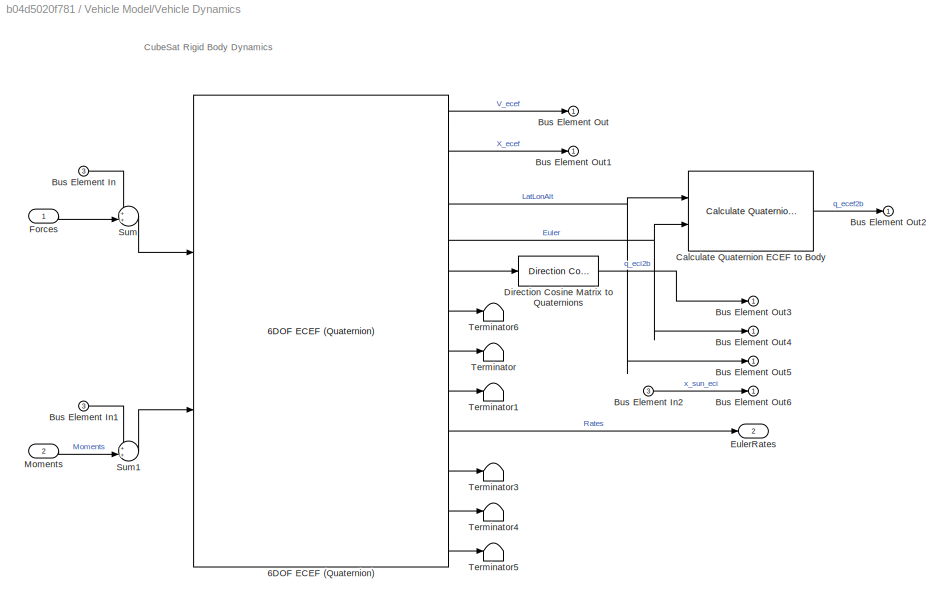
BLOCK [SubSystem] Vehicle Model/Vehicle Dynamics
  AncestorBlock = asbCubeSatDynamicsLib/Vehicle Dynamics
  Ports = [3, 2]
  RequestExecContextInheritance = off
BLOCK [Reference] Vehicle Model/Vehicle Dynamics/6DOF ECEF (Quaternion)  REF=aerolib6dof2/6DOF ECEF (Quaternion)
  Ports = [2, 12]
  SourceBlock = aerolib6dof2/6DOF ECEF (Quaternion)
  SourceProductBaseCode = AE
  SourceProductName = Aerospace Blockset
  SourceType = 6DOF EoM (ECEF)
BLOCK [Inport] Vehicle Model/Vehicle Dynamics/Bus Element In
  IconDisplay = Port number
  Port = 3
BLOCK [Inport] Vehicle Model/Vehicle Dynamics/Bus Element In1
  IconDisplay = Port number
  Port = 3
BLOCK [Inport] Vehicle Model/Vehicle Dynamics/Bus Element In2
  IconDisplay = Port number
  Port = 3
BLOCK [Outport] Vehicle Model/Vehicle Dynamics/Bus Element Out
  IconDisplay = Port number
  VectorParamsAs1DForOutWhenUnconnected = off
BLOCK [Outport] Vehicle Model/Vehicle Dynamics/Bus Element Out1
  IconDisplay = Port number
  VectorParamsAs1DForOutWhenUnconnected = off
BLOCK [Outport] Vehicle Model/Vehicle Dynamics/Bus Element Out2
  IconDisplay = Port number
  VectorParamsAs1DForOutWhenUnconnected = off
BLOCK [Outport] Vehicle Model/Vehicle Dynamics/Bus Element Out3
  IconDisplay = Port number
  VectorParamsAs1DForOutWhenUnconnected = off
BLOCK [Outport] Vehicle Model/Vehicle Dynamics/Bus Element Out4
  IconDisplay = Port number
  VectorParamsAs1DForOutWhenUnconnected = off
BLOCK [Outport] Vehicle Model/Vehicle Dynamics/Bus Element Out5
  IconDisplay = Port number
  VectorParamsAs1DForOutWhenUnconnected = off
BLOCK [Outport] Vehicle Model/Vehicle Dynamics/Bus Element Out6
  IconDisplay = Port number
  VectorParamsAs1DForOutWhenUnconnected = off
BLOCK [Reference] Vehicle Model/Vehicle Dynamics/Calculate Quaternion ECEF to Body  REF=asbCubeSatBlockLib/Axes Transformations/Coordinate System Transformations/Calculate Quaternion
ECEF to Body
  Ports = [2, 1]
  SourceBlock = asbCubeSatBlockLib/Axes Transformations/Coordinate System Transformations/Calculate Quaternion\nECEF to Body
  SourceProductBaseCode = AERO_CUBESAT
  SourceProductName = Aerospace Blockset CubeSat Simulation Library
  SourceType = SubSystem
BLOCK [Reference] Vehicle Model/Vehicle Dynamics/Direction Cosine Matrix to Quaternions  REF=sharedtransform/Direction Cosine Matrix 
to Quaternions
  Ports = [1, 1]
  SourceBlock = sharedtransform/Direction Cosine Matrix \nto Quaternions
  SourceProductBaseCode = AE
  SourceProductName = Aerospace Blockset
  SourceType = DCM2Quaternion
BLOCK [Outport] Vehicle Model/Vehicle Dynamics/EulerRates
  IconDisplay = Port number
  Port = 2
BLOCK [Inport] Vehicle Model/Vehicle Dynamics/Forces
  IconDisplay = Port number
BLOCK [Inport] Vehicle Model/Vehicle Dynamics/Moments
  IconDisplay = Port number
  Port = 2
BLOCK [Sum] Vehicle Model/Vehicle Dynamics/Sum
  IconShape = round
  InputSameDT = off
  Inputs = ++|
  OutDataTypeStr = Inherit: Inherit via internal rule
  Ports = [2, 1]
  SaturateOnIntegerOverflow = off
BLOCK [Sum] Vehicle Model/Vehicle Dynamics/Sum1
  IconShape = round
  InputSameDT = off
  Inputs = ++|
  OutDataTypeStr = Inherit: Inherit via internal rule
  Ports = [2, 1]
  SaturateOnIntegerOverflow = off
BLOCK [Terminator] Vehicle Model/Vehicle Dynamics/Terminator
BLOCK [Terminator] Vehicle Model/Vehicle Dynamics/Terminator1
BLOCK [Terminator] Vehicle Model/Vehicle Dynamics/Terminator3
BLOCK [Terminator] Vehicle Model/Vehicle Dynamics/Terminator4
BLOCK [Terminator] Vehicle Model/Vehicle Dynamics/Terminator5
BLOCK [Terminator] Vehicle Model/Vehicle Dynamics/Terminator6
BLOCK [SubSystem] Vehicle Model/Vehicle Flight Software
  AncestorBlock = asbCubeSatFSWLib/Vehicle Flight Software
  Ports = [3, 1]
  RequestExecContextInheritance = off
BLOCK [ModelReference] Vehicle Model/Vehicle Flight Software/Attitude Control System
  ModelNameDialog = asbCubeSatACS.slx
  ModelReferenceVersion = 1.192
  Ports = [3, 1]
BLOCK [BusCreator] Vehicle Model/Vehicle Flight Software/Bus Creator
  DisplayOption = bar
  InheritFromInputs = on
  Inputs = 1
  NonVirtualBus = on
  OutDataTypeStr = Bus: FCSOutBus
  Ports = [1, 1]
BLOCK [BusSelector] Vehicle Model/Vehicle Flight Software/Bus Selector
  OutputAsBus = off
  OutputSignals = ACSOut.AttitudeError
  Ports = [1, 1]
BLOCK [Inport] Vehicle Model/Vehicle Flight Software/ControlMode
  IconDisplay = Port number
BLOCK [Inport] Vehicle Model/Vehicle Flight Software/Environment
  IconDisplay = Port number
  Port = 2
BLOCK [Outport] Vehicle Model/Vehicle Flight Software/FSWOut
  IconDisplay = Port number
  OutDataTypeStr = Bus: FCSOutBus
  VectorParamsAs1DForOutWhenUnconnected = off
BLOCK [Inport] Vehicle Model/Vehicle Flight Software/SensorsOut
  IconDisplay = Port number
  OutDataTypeStr = Bus: StatesOutBus
  Port = 3
BLOCK [Terminator] Vehicle Model/Vehicle Flight Software/Terminator
BLOCK [SubSystem] Visualization
  Ports = [2]
  RequestExecContextInheritance = off
  Variant = on
BLOCK [Inport] Visualization/BodyStates
  IconDisplay = Port number
  Port = 2
BLOCK [Inport] Visualization/Environment
  IconDisplay = Port number
BLOCK [SubSystem] Visualization/No Visualization
  Ports = [2]
  RequestExecContextInheritance = off
  VariantControl = visOff
BLOCK [Inport] Visualization/No Visualization/BodyStates
  IconDisplay = Port number
BLOCK [Inport] Visualization/No Visualization/Environment
  IconDisplay = Port number
  Port = 2
BLOCK [Terminator] Visualization/No Visualization/Terminator2
BLOCK [Terminator] Visualization/No Visualization/Terminator3
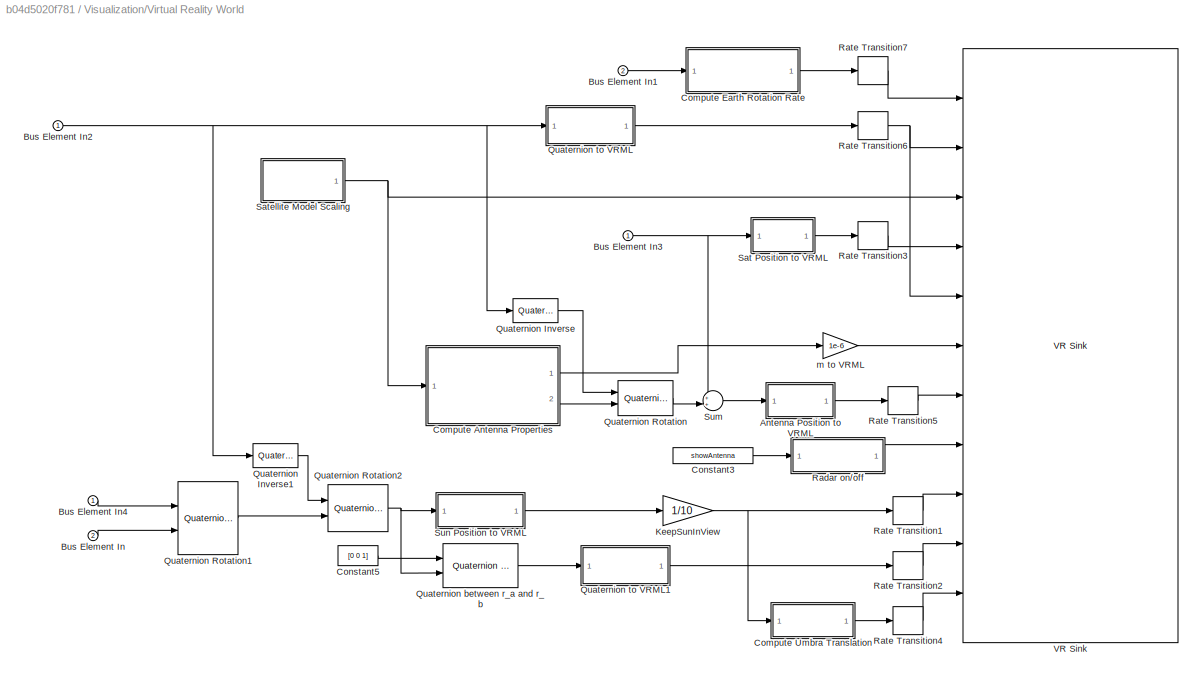
BLOCK [SubSystem] Visualization/Virtual Reality World
  Ports = [2]
  RequestExecContextInheritance = off
  VariantControl = visSL3D
BLOCK [SubSystem] Visualization/Virtual Reality World/Antenna Position to VRML
  Ports = [1, 1]
  RequestExecContextInheritance = off
BLOCK [SubSystem] Visualization/Virtual Reality World/Antenna Position to VRML/ECEF to VRML
  Ports = [1, 1]
  RequestExecContextInheritance = off
BLOCK [Demux] Visualization/Virtual Reality World/Antenna Position to VRML/ECEF to VRML/Demux
  DisplayOption = bar
  Outputs = 3
  Ports = [1, 3]
BLOCK [Gain] Visualization/Virtual Reality World/Antenna Position to VRML/ECEF to VRML/Gain3
  Gain = -1
  OutDataTypeStr = Inherit: Inherit via internal rule
  ParamDataTypeStr = Inherit: Inherit via internal rule
  SaturateOnIntegerOverflow = off
BLOCK [Inport] Visualization/Virtual Reality World/Antenna Position to VRML/ECEF to VRML/M
  IconDisplay = Port number
  PortDimensions = 3
BLOCK [Mux] Visualization/Virtual Reality World/Antenna Position to VRML/ECEF to VRML/Mux
  DisplayOption = bar
  Inputs = 3
  Ports = [3, 1]
BLOCK [Outport] Visualization/Virtual Reality World/Antenna Position to VRML/ECEF to VRML/VR
  IconDisplay = Port number
  PortDimensions = 3
  VectorParamsAs1DForOutWhenUnconnected = off
BLOCK [Reference] Visualization/Virtual Reality World/Antenna Position to VRML/Length Conversion  REF=aerolibconvert2/Length Conversion
  Ports = [1, 1]
  SourceBlock = aerolibconvert2/Length Conversion
  SourceProductBaseCode = AE
  SourceProductName = Aerospace Blockset
  SourceType = Length Conversion
BLOCK [Gain] Visualization/Virtual Reality World/Antenna Position to VRML/km to VRML units
  Gain = 1/1000
  OutDataTypeStr = Inherit: Inherit via internal rule
  ParamDataTypeStr = Inherit: Inherit via internal rule
  SaturateOnIntegerOverflow = off
BLOCK [Inport] Visualization/Virtual Reality World/Antenna Position to VRML/x
  IconDisplay = Port number
BLOCK [Outport] Visualization/Virtual Reality World/Antenna Position to VRML/xVRML
  IconDisplay = Port number
  VectorParamsAs1DForOutWhenUnconnected = off
BLOCK [Inport] Visualization/Virtual Reality World/Bus Element In
  IconDisplay = Port number
  Port = 2
BLOCK [Inport] Visualization/Virtual Reality World/Bus Element In1
  IconDisplay = Port number
  Port = 2
BLOCK [Inport] Visualization/Virtual Reality World/Bus Element In2
  IconDisplay = Port number
BLOCK [Inport] Visualization/Virtual Reality World/Bus Element In3
  IconDisplay = Port number
BLOCK [Inport] Visualization/Virtual Reality World/Bus Element In4
  IconDisplay = Port number
BLOCK [SubSystem] Visualization/Virtual Reality World/Compute Antenna Properties
  Ports = [1, 2]
  RequestExecContextInheritance = off
BLOCK [Outport] Visualization/Virtual Reality World/Compute Antenna Properties/AntennaScale
  IconDisplay = Port number
  VectorParamsAs1DForOutWhenUnconnected = off
BLOCK [Outport] Visualization/Virtual Reality World/Compute Antenna Properties/AntennaTrans
  IconDisplay = Port number
  Port = 2
  VectorParamsAs1DForOutWhenUnconnected = off
BLOCK [Constant] Visualization/Virtual Reality World/Compute Antenna Properties/Constant1
  Value = antennaHalfAngle
BLOCK [Constant] Visualization/Virtual Reality World/Compute Antenna Properties/Constant2
  Value = antennaHeight
BLOCK [Constant] Visualization/Virtual Reality World/Compute Antenna Properties/Constant4
  Value = 0
BLOCK [Gain] Visualization/Virtual Reality World/Compute Antenna Properties/Gain1
  Gain = .5
  OutDataTypeStr = Inherit: Inherit via internal rule
  ParamDataTypeStr = Inherit: Inherit via internal rule
  SaturateOnIntegerOverflow = off
BLOCK [Gain] Visualization/Virtual Reality World/Compute Antenna Properties/Gain2
  Gain = pi/180
  OutDataTypeStr = Inherit: Inherit via internal rule
  ParamDataTypeStr = Inherit: Inherit via internal rule
  SaturateOnIntegerOverflow = off
BLOCK [Mux] Visualization/Virtual Reality World/Compute Antenna Properties/Mux1
  DisplayOption = bar
  Inputs = 3
  Ports = [3, 1]
BLOCK [Mux] Visualization/Virtual Reality World/Compute Antenna Properties/Mux2
  DisplayOption = bar
  Inputs = 3
  Ports = [3, 1]
BLOCK [Product] Visualization/Virtual Reality World/Compute Antenna Properties/Product
  InputSameDT = off
  OutDataTypeStr = Inherit: Inherit via internal rule
  Ports = [2, 1]
  RndMeth = Floor
  SaturateOnIntegerOverflow = off
BLOCK [Inport] Visualization/Virtual Reality World/Compute Antenna Properties/SatScale
  IconDisplay = Port number
BLOCK [Selector] Visualization/Virtual Reality World/Compute Antenna Properties/Selector
  IndexOptions = Index vector (dialog)
  Indices = 1
  InputPortWidth = 3
  OutputSizes = 1
  Ports = [1, 1]
BLOCK [Sum] Visualization/Virtual Reality World/Compute Antenna Properties/Sum1
  IconShape = round
  InputSameDT = off
  Inputs = ++|
  OutDataTypeStr = Inherit: Inherit via internal rule
  Ports = [2, 1]
  SaturateOnIntegerOverflow = off
BLOCK [Trigonometry] Visualization/Virtual Reality World/Compute Antenna Properties/Trigonometric Function
  Operator = tan
  Ports = [1, 1]
BLOCK [Gain] Visualization/Virtual Reality World/Compute Antenna Properties/gain
  Gain = .25*1e6
  OutDataTypeStr = Inherit: Inherit via internal rule
  ParamDataTypeStr = Inherit: Inherit via internal rule
  SaturateOnIntegerOverflow = off
BLOCK [SubSystem] Visualization/Virtual Reality World/Compute Earth Rotation Rate
  Ports = [1, 1]
  RequestExecContextInheritance = off
BLOCK [Constant] Visualization/Virtual Reality World/Compute Earth Rotation Rate/Constant
  Value = 0
BLOCK [Constant] Visualization/Virtual Reality World/Compute Earth Rotation Rate/Constant1
  Value = 0
BLOCK [Inport] Visualization/Virtual Reality World/Compute Earth Rotation Rate/EarthRot
  IconDisplay = Port number
BLOCK [Reference] Visualization/Virtual Reality World/Compute Earth Rotation Rate/Euler Angles to Quaternions  REF=aerolibobsolete/Euler Angles to Quaternions
  Ports = [1, 1]
  SourceBlock = aerolibobsolete/Euler Angles to Quaternions
  SourceProductBaseCode = AE
  SourceProductName = Aerospace Blockset
  SourceType = Euler2Quaternion
BLOCK [SubSystem] Visualization/Virtual Reality World/Compute Earth Rotation Rate/Quaternion to VRML
  Ports = [1, 1]
  RequestExecContextInheritance = off
BLOCK [Outport] Visualization/Virtual Reality World/Compute Earth Rotation Rate/Quaternion to VRML/AxisAngle
  IconDisplay = Port number
  VectorParamsAs1DForOutWhenUnconnected = off
BLOCK [Demux] Visualization/Virtual Reality World/Compute Earth Rotation Rate/Quaternion to VRML/Demux
  DisplayOption = bar
  Ports = [1, 4]
BLOCK [Gain] Visualization/Virtual Reality World/Compute Earth Rotation Rate/Quaternion to VRML/Gain
  Gain = 2
  OutDataTypeStr = Inherit: Inherit via internal rule
  ParamDataTypeStr = Inherit: Inherit via internal rule
  SaturateOnIntegerOverflow = off
BLOCK [Gain] Visualization/Virtual Reality World/Compute Earth Rotation Rate/Quaternion to VRML/Gain3
  Gain = [-1 1 1 1]
  OutDataTypeStr = Inherit: Inherit via internal rule
  ParamDataTypeStr = Inherit: Inherit via internal rule
  SaturateOnIntegerOverflow = off
BLOCK [Mux] Visualization/Virtual Reality World/Compute Earth Rotation Rate/Quaternion to VRML/Mux
  DisplayOption = bar
  Ports = [4, 1]
BLOCK [Selector] Visualization/Virtual Reality World/Compute Earth Rotation Rate/Quaternion to VRML/Selector
  IndexOptions = Index vector (dialog)
  Indices = [2 4 3 1]
  InputPortWidth = 4
  OutputSizes = 1
  Ports = [1, 1]
BLOCK [Trigonometry] Visualization/Virtual Reality World/Compute Earth Rotation Rate/Quaternion to VRML/Trigonometric Function
  Operator = acos
  Ports = [1, 1]
BLOCK [Inport] Visualization/Virtual Reality World/Compute Earth Rotation Rate/Quaternion to VRML/q
  IconDisplay = Port number
BLOCK [Sum] Visualization/Virtual Reality World/Compute Earth Rotation Rate/Sum
  IconShape = round
  InputSameDT = off
  Inputs = |++
  OutDataTypeStr = Inherit: Inherit via internal rule
  Ports = [2, 1]
  SaturateOnIntegerOverflow = off
BLOCK [UnitDelay] Visualization/Virtual Reality World/Compute Earth Rotation Rate/Unit Delay
  HasFrameUpgradeWarning = on
  SampleTime = -1
BLOCK [Outport] Visualization/Virtual Reality World/Compute Earth Rotation Rate/VRMLRot
  IconDisplay = Port number
  VectorParamsAs1DForOutWhenUnconnected = off
BLOCK [Concatenate] Visualization/Virtual Reality World/Compute Earth Rotation Rate/Vector Concatenate
  NumInputs = 3
  Ports = [3, 1]
BLOCK [SubSystem] Visualization/Virtual Reality World/Compute Umbra Translation
  Ports = [1, 1]
  RequestExecContextInheritance = off
BLOCK [Sum] Visualization/Virtual Reality World/Compute Umbra Translation/Add
  InputSameDT = off
  OutDataTypeStr = Inherit: Inherit via internal rule
  Ports = [2, 1]
  SaturateOnIntegerOverflow = off
BLOCK [Gain] Visualization/Virtual Reality World/Compute Umbra Translation/ConeHalfLength
  Gain = 692
  OutDataTypeStr = Inherit: Inherit via internal rule
  ParamDataTypeStr = Inherit: Inherit via internal rule
  SaturateOnIntegerOverflow = off
BLOCK [Inport] Visualization/Virtual Reality World/Compute Umbra Translation/I
  IconDisplay = Port number
BLOCK [Gain] Visualization/Virtual Reality World/Compute Umbra Translation/InvertSunPosECEF
  Gain = -1
  OutDataTypeStr = Inherit: Inherit via internal rule
  ParamDataTypeStr = Inherit: Inherit via internal rule
  SaturateOnIntegerOverflow = off
BLOCK [Outport] Visualization/Virtual Reality World/Compute Umbra Translation/O
  IconDisplay = Port number
  VectorParamsAs1DForOutWhenUnconnected = off
BLOCK [SubSystem] Visualization/Virtual Reality World/Compute Umbra Translation/unitVec
  Ports = [1, 1]
  RequestExecContextInheritance = off
BLOCK [Product] Visualization/Virtual Reality World/Compute Umbra Translation/unitVec/Divide
  InputSameDT = off
  Inputs = */
  OutDataTypeStr = Inherit: Inherit via internal rule
  Ports = [2, 1]
  RndMeth = Floor
  SaturateOnIntegerOverflow = off
BLOCK [DotProduct] Visualization/Virtual Reality World/Compute Umbra Translation/unitVec/Dot Product
  OutDataTypeStr = Inherit: Inherit via internal rule
BLOCK [Inport] Visualization/Virtual Reality World/Compute Umbra Translation/unitVec/I
  IconDisplay = Port number
BLOCK [Outport] Visualization/Virtual Reality World/Compute Umbra Translation/unitVec/O
  IconDisplay = Port number
  VectorParamsAs1DForOutWhenUnconnected = off
BLOCK [Sqrt] Visualization/Virtual Reality World/Compute Umbra Translation/unitVec/Sqrt
BLOCK [Constant] Visualization/Virtual Reality World/Constant3
  Value = showAntenna
BLOCK [Constant] Visualization/Virtual Reality World/Constant5
  Value = [0 0 1]
BLOCK [Gain] Visualization/Virtual Reality World/KeepSunInView
  Gain = 1/10
  OutDataTypeStr = Inherit: Inherit via internal rule
  ParamDataTypeStr = Inherit: Inherit via internal rule
  SaturateOnIntegerOverflow = off
BLOCK [Reference] Visualization/Virtual Reality World/Quaternion Inverse  REF=aerolibutil/Quaternion
Inverse
  Ports = [1, 1]
  SourceBlock = aerolibutil/Quaternion\nInverse
  SourceProductBaseCode = AE
  SourceProductName = Aerospace Blockset
  SourceType = Quaternion Inverse
BLOCK [Reference] Visualization/Virtual Reality World/Quaternion Inverse1  REF=aerolibutil/Quaternion
Inverse
  Ports = [1, 1]
  SourceBlock = aerolibutil/Quaternion\nInverse
  SourceProductBaseCode = AE
  SourceProductName = Aerospace Blockset
  SourceType = Quaternion Inverse
BLOCK [Reference] Visualization/Virtual Reality World/Quaternion Rotation  REF=aerolibutil/Quaternion
Rotation
  Ports = [2, 1]
  SourceBlock = aerolibutil/Quaternion\nRotation
  SourceProductBaseCode = AE
  SourceProductName = Aerospace Blockset
  SourceType = Quaternion Rotation
BLOCK [Reference] Visualization/Virtual Reality World/Quaternion Rotation1  REF=aerolibutil/Quaternion
Rotation
  Ports = [2, 1]
  SourceBlock = aerolibutil/Quaternion\nRotation
  SourceProductBaseCode = AE
  SourceProductName = Aerospace Blockset
  SourceType = Quaternion Rotation
BLOCK [Reference] Visualization/Virtual Reality World/Quaternion Rotation2  REF=aerolibutil/Quaternion
Rotation
  Ports = [2, 1]
  SourceBlock = aerolibutil/Quaternion\nRotation
  SourceProductBaseCode = AE
  SourceProductName = Aerospace Blockset
  SourceType = Quaternion Rotation
BLOCK [Reference] Visualization/Virtual Reality World/Quaternion between r_a and r_b  REF=asbCubeSatBlockLib/Axes Transformations/Attitude Conversion/Quaternion between
r_a and r_b
  Ports = [2, 1]
  SourceBlock = asbCubeSatBlockLib/Axes Transformations/Attitude Conversion/Quaternion between\nr_a and r_b
  SourceProductBaseCode = AERO_CUBESAT
  SourceProductName = Aerospace Blockset CubeSat Simulation Library
  SourceType = SubSystem
BLOCK [SubSystem] Visualization/Virtual Reality World/Quaternion to VRML
  Ports = [1, 1]
  RequestExecContextInheritance = off
BLOCK [Demux] Visualization/Virtual Reality World/Quaternion to VRML/Demux
  DisplayOption = bar
  Ports = [1, 4]
BLOCK [Constant] Visualization/Virtual Reality World/Quaternion to VRML/Flip 180 deg
  Value = [0 0 1 0]
BLOCK [Gain] Visualization/Virtual Reality World/Quaternion to VRML/Gain
  Gain = 2
  OutDataTypeStr = Inherit: Inherit via internal rule
  ParamDataTypeStr = Inherit: Inherit via internal rule
  SaturateOnIntegerOverflow = off
BLOCK [Gain] Visualization/Virtual Reality World/Quaternion to VRML/Gain3
  Gain = [-1 1 1 1]
  OutDataTypeStr = Inherit: Inherit via internal rule
  ParamDataTypeStr = Inherit: Inherit via internal rule
  SaturateOnIntegerOverflow = off
BLOCK [Mux] Visualization/Virtual Reality World/Quaternion to VRML/Mux
  DisplayOption = bar
  Ports = [4, 1]
BLOCK [Reference] Visualization/Virtual Reality World/Quaternion to VRML/Quaternion Multiplication  REF=aerolibutil/Quaternion
Multiplication
  Ports = [2, 1]
  SourceBlock = aerolibutil/Quaternion\nMultiplication
  SourceProductBaseCode = AE
  SourceProductName = Aerospace Blockset
  SourceType = Quaternion Multiplication
BLOCK [Selector] Visualization/Virtual Reality World/Quaternion to VRML/Selector
  IndexOptions = Index vector (dialog)
  Indices = [2 4 3 1]
  InputPortWidth = 4
  OutputSizes = 1
  Ports = [1, 1]
BLOCK [Trigonometry] Visualization/Virtual Reality World/Quaternion to VRML/Trigonometric Function
  Operator = acos
  Ports = [1, 1]
BLOCK [Outport] Visualization/Virtual Reality World/Quaternion to VRML/axis_angle
  IconDisplay = Port number
  VectorParamsAs1DForOutWhenUnconnected = off
BLOCK [Inport] Visualization/Virtual Reality World/Quaternion to VRML/q
  IconDisplay = Port number
BLOCK [SubSystem] Visualization/Virtual Reality World/Quaternion to VRML1
  Ports = [1, 1]
  RequestExecContextInheritance = off
BLOCK [Demux] Visualization/Virtual Reality World/Quaternion to VRML1/Demux
  DisplayOption = bar
  Ports = [1, 4]
BLOCK [Constant] Visualization/Virtual Reality World/Quaternion to VRML1/Flip 180 deg
  Value = [0 0 1 0]
BLOCK [Gain] Visualization/Virtual Reality World/Quaternion to VRML1/Gain
  Gain = 2
  OutDataTypeStr = Inherit: Inherit via internal rule
  ParamDataTypeStr = Inherit: Inherit via internal rule
  SaturateOnIntegerOverflow = off
BLOCK [Gain] Visualization/Virtual Reality World/Quaternion to VRML1/Gain3
  Gain = [-1 1 1 1]
  OutDataTypeStr = Inherit: Inherit via internal rule
  ParamDataTypeStr = Inherit: Inherit via internal rule
  SaturateOnIntegerOverflow = off
BLOCK [Mux] Visualization/Virtual Reality World/Quaternion to VRML1/Mux
  DisplayOption = bar
  Ports = [4, 1]
BLOCK [Reference] Visualization/Virtual Reality World/Quaternion to VRML1/Quaternion Multiplication  REF=aerolibutil/Quaternion
Multiplication
  Ports = [2, 1]
  SourceBlock = aerolibutil/Quaternion\nMultiplication
  SourceProductBaseCode = AE
  SourceProductName = Aerospace Blockset
  SourceType = Quaternion Multiplication
BLOCK [Selector] Visualization/Virtual Reality World/Quaternion to VRML1/Selector
  IndexOptions = Index vector (dialog)
  Indices = [2 4 3 1]
  InputPortWidth = 4
  OutputSizes = 1
  Ports = [1, 1]
BLOCK [Trigonometry] Visualization/Virtual Reality World/Quaternion to VRML1/Trigonometric Function
  Operator = acos
  Ports = [1, 1]
BLOCK [Outport] Visualization/Virtual Reality World/Quaternion to VRML1/axis_angle
  IconDisplay = Port number
  VectorParamsAs1DForOutWhenUnconnected = off
BLOCK [Inport] Visualization/Virtual Reality World/Quaternion to VRML1/q
  IconDisplay = Port number
BLOCK [SubSystem] Visualization/Virtual Reality World/Radar on//off
  Ports = [1, 1]
  RequestExecContextInheritance = off
BLOCK [Sum] Visualization/Virtual Reality World/Radar on//off/Add
  InputSameDT = off
  Inputs = -+
  OutDataTypeStr = Inherit: Inherit via internal rule
  Ports = [2, 1]
  SaturateOnIntegerOverflow = off
BLOCK [Reference] Visualization/Virtual Reality World/Radar on//off/Compare To Constant  REF=simulink/Logic and Bit
Operations/Compare
To Constant
  Ports = [1, 1]
  SourceBlock = simulink/Logic and Bit\nOperations/Compare\nTo Constant
  SourceProductBaseCode = SL
  SourceProductName = Simulink
  SourceType = Compare To Constant
BLOCK [Constant] Visualization/Virtual Reality World/Radar on//off/Constant
BLOCK [DataTypeConversion] Visualization/Virtual Reality World/Radar on//off/Data Type Conversion
  OutDataTypeStr = double
  RndMeth = Floor
  SaturateOnIntegerOverflow = off
BLOCK [Gain] Visualization/Virtual Reality World/Radar on//off/Gain
  Gain = 0.6
  OutDataTypeStr = Inherit: Inherit via internal rule
  ParamDataTypeStr = Inherit: Inherit via internal rule
  SaturateOnIntegerOverflow = off
BLOCK [Inport] Visualization/Virtual Reality World/Radar on//off/NavMode
  IconDisplay = Port number
BLOCK [Outport] Visualization/Virtual Reality World/Radar on//off/Radar
  IconDisplay = Port number
  VectorParamsAs1DForOutWhenUnconnected = off
BLOCK [RateTransition] Visualization/Virtual Reality World/Rate Transition1
BLOCK [RateTransition] Visualization/Virtual Reality World/Rate Transition2
BLOCK [RateTransition] Visualization/Virtual Reality World/Rate Transition3
BLOCK [RateTransition] Visualization/Virtual Reality World/Rate Transition4
BLOCK [RateTransition] Visualization/Virtual Reality World/Rate Transition5
BLOCK [RateTransition] Visualization/Virtual Reality World/Rate Transition6
BLOCK [RateTransition] Visualization/Virtual Reality World/Rate Transition7
BLOCK [SubSystem] Visualization/Virtual Reality World/Sat Position to VRML
  Ports = [1, 1]
  RequestExecContextInheritance = off
BLOCK [SubSystem] Visualization/Virtual Reality World/Sat Position to VRML/ECEF to VRML
  Ports = [1, 1]
  RequestExecContextInheritance = off
BLOCK [Demux] Visualization/Virtual Reality World/Sat Position to VRML/ECEF to VRML/Demux
  DisplayOption = bar
  Outputs = 3
  Ports = [1, 3]
BLOCK [Gain] Visualization/Virtual Reality World/Sat Position to VRML/ECEF to VRML/Gain3
  Gain = -1
  OutDataTypeStr = Inherit: Inherit via internal rule
  ParamDataTypeStr = Inherit: Inherit via internal rule
  SaturateOnIntegerOverflow = off
BLOCK [Inport] Visualization/Virtual Reality World/Sat Position to VRML/ECEF to VRML/M
  IconDisplay = Port number
  PortDimensions = 3
BLOCK [Mux] Visualization/Virtual Reality World/Sat Position to VRML/ECEF to VRML/Mux
  DisplayOption = bar
  Inputs = 3
  Ports = [3, 1]
BLOCK [Outport] Visualization/Virtual Reality World/Sat Position to VRML/ECEF to VRML/VR
  IconDisplay = Port number
  PortDimensions = 3
  VectorParamsAs1DForOutWhenUnconnected = off
BLOCK [Reference] Visualization/Virtual Reality World/Sat Position to VRML/Length Conversion  REF=aerolibconvert2/Length Conversion
  Ports = [1, 1]
  SourceBlock = aerolibconvert2/Length Conversion
  SourceProductBaseCode = AE
  SourceProductName = Aerospace Blockset
  SourceType = Length Conversion
BLOCK [Gain] Visualization/Virtual Reality World/Sat Position to VRML/km to VRML units
  Gain = 1/1000
  OutDataTypeStr = Inherit: Inherit via internal rule
  ParamDataTypeStr = Inherit: Inherit via internal rule
  SaturateOnIntegerOverflow = off
BLOCK [Inport] Visualization/Virtual Reality World/Sat Position to VRML/x
  IconDisplay = Port number
BLOCK [Outport] Visualization/Virtual Reality World/Sat Position to VRML/xVRML
  IconDisplay = Port number
  VectorParamsAs1DForOutWhenUnconnected = off
BLOCK [SubSystem] Visualization/Virtual Reality World/Satellite Model Scaling
  Ports = [0, 1]
  RequestExecContextInheritance = off
BLOCK [Constant] Visualization/Virtual Reality World/Satellite Model Scaling/Constant
  Value = cubesatSize
BLOCK [Mux] Visualization/Virtual Reality World/Satellite Model Scaling/Mux
  DisplayOption = bar
  Inputs = 3
  Ports = [3, 1]
BLOCK [Outport] Visualization/Virtual Reality World/Satellite Model Scaling/Out1
  IconDisplay = Port number
  VectorParamsAs1DForOutWhenUnconnected = off
BLOCK [Gain] Visualization/Virtual Reality World/Satellite Model Scaling/ScaleModelToVRML
  Gain = 1/.3e6
  OutDataTypeStr = Inherit: Inherit via internal rule
  ParamDataTypeStr = Inherit: Inherit via internal rule
  SaturateOnIntegerOverflow = off
BLOCK [Sum] Visualization/Virtual Reality World/Sum
  IconShape = round
  InputSameDT = off
  Inputs = ++|
  OutDataTypeStr = Inherit: Inherit via internal rule
  Ports = [2, 1]
  SaturateOnIntegerOverflow = off
BLOCK [SubSystem] Visualization/Virtual Reality World/Sun Position to VRML
  Ports = [1, 1]
  RequestExecContextInheritance = off
BLOCK [SubSystem] Visualization/Virtual Reality World/Sun Position to VRML/ECEF to VRML
  Ports = [1, 1]
  RequestExecContextInheritance = off
BLOCK [Demux] Visualization/Virtual Reality World/Sun Position to VRML/ECEF to VRML/Demux
  DisplayOption = bar
  Outputs = 3
  Ports = [1, 3]
BLOCK [Gain] Visualization/Virtual Reality World/Sun Position to VRML/ECEF to VRML/Gain3
  Gain = -1
  OutDataTypeStr = Inherit: Inherit via internal rule
  ParamDataTypeStr = Inherit: Inherit via internal rule
  SaturateOnIntegerOverflow = off
BLOCK [Inport] Visualization/Virtual Reality World/Sun Position to VRML/ECEF to VRML/M
  IconDisplay = Port number
  PortDimensions = 3
BLOCK [Mux] Visualization/Virtual Reality World/Sun Position to VRML/ECEF to VRML/Mux
  DisplayOption = bar
  Inputs = 3
  Ports = [3, 1]
BLOCK [Outport] Visualization/Virtual Reality World/Sun Position to VRML/ECEF to VRML/VR
  IconDisplay = Port number
  PortDimensions = 3
  VectorParamsAs1DForOutWhenUnconnected = off
BLOCK [Reference] Visualization/Virtual Reality World/Sun Position to VRML/Length Conversion  REF=aerolibconvert2/Length Conversion
  Ports = [1, 1]
  SourceBlock = aerolibconvert2/Length Conversion
  SourceProductBaseCode = AE
  SourceProductName = Aerospace Blockset
  SourceType = Length Conversion
BLOCK [Gain] Visualization/Virtual Reality World/Sun Position to VRML/km to VRML units
  Gain = 1/1000
  OutDataTypeStr = Inherit: Inherit via internal rule
  ParamDataTypeStr = Inherit: Inherit via internal rule
  SaturateOnIntegerOverflow = off
BLOCK [Inport] Visualization/Virtual Reality World/Sun Position to VRML/x
  IconDisplay = Port number
BLOCK [Outport] Visualization/Virtual Reality World/Sun Position to VRML/xVRML
  IconDisplay = Port number
  VectorParamsAs1DForOutWhenUnconnected = off
BLOCK [Reference] Visualization/Virtual Reality World/VR Sink  REF=vrlib/VR Sink
  InstantiateOnLoad = on
  Ports = [11]
  SourceBlock = vrlib/VR Sink
  SourceProductBaseCode = SL
  SourceProductName = Simulink
  SourceType = Virtual Reality Sink
BLOCK [Gain] Visualization/Virtual Reality World/m to VRML
  Gain = 1e-6
  OutDataTypeStr = Inherit: Inherit via internal rule
  ParamDataTypeStr = Inherit: Inherit via internal rule
  SaturateOnIntegerOverflow = off
ANNOTATION (root): 0 - Ideal 1 - RW 2 - Thru 3 - Magne
ANNOTATION (root): 0 - Standby 1 - Nadir Poiting 2 - Sun Tracking 3 - Custom
ANNOTATION (root): CubeSat Simulation
ANNOTATION (root): <copyright redacted>
ANNOTATION (root): CubeSat
ANNOTATION (root): Environment
ANNOTATION (root): Mission Configuration
ANNOTATION (root): Visualization
ANNOTATION Pointing Mode: 0 - Standby 1 - Nadir Poiting 2 - Sun Tracking 3 - Custom
ANNOTATION Pointing Mode: Modes: 0 = Off 1 = Earth (Nadir) 2 = Sun
ANNOTATION Vehicle Model: Flight Software
ANNOTATION Vehicle Model: Plant Model
ANNOTATION Vehicle Model/Vehicle Control Actuators: 0 - Ideal 1 - RW 2 - Thru 3 - Magne
ANNOTATION Vehicle Model/Vehicle Control Actuators/CubeSat Reaction Wheels/Reaction Wheel Pitch: Disturbances can be put here
ANNOTATION Vehicle Model/Vehicle Control Actuators/CubeSat Reaction Wheels/Reaction Wheel Pitch: input here
ANNOTATION Vehicle Model/Vehicle Control Actuators/CubeSat Reaction Wheels/Reaction Wheel Pitch: qw - anqular velocity of the wheel
ANNOTATION Vehicle Model/Vehicle Control Actuators/CubeSat Reaction Wheels/Reaction Wheel Roll: Disturbances can be put here
ANNOTATION Vehicle Model/Vehicle Control Actuators/CubeSat Reaction Wheels/Reaction Wheel Roll: input here
ANNOTATION Vehicle Model/Vehicle Control Actuators/CubeSat Reaction Wheels/Reaction Wheel Roll: qw - anqular velocity of the wheel
ANNOTATION Vehicle Model/Vehicle Control Actuators/CubeSat Reaction Wheels/Reaction Wheel Yaw: Disturbances can be put here
ANNOTATION Vehicle Model/Vehicle Control Actuators/CubeSat Reaction Wheels/Reaction Wheel Yaw: input here
ANNOTATION Vehicle Model/Vehicle Control Actuators/CubeSat Reaction Wheels/Reaction Wheel Yaw: qw - anqular velocity of the wheel
ANNOTATION Vehicle Model/Vehicle Dynamics: CubeSat Rigid Body Dynamics
NET Enviroment:1 -> Goto1:1, Vehicle Model:1
LINE External Forces and Torques /Forces_Body:1 -> External Forces and Torques /Mux:1
LINE External Forces and Torques /Mux:1 -> External Forces and Torques /Ext:1
LINE External Forces and Torques /Torques_Body:1 -> External Forces and Torques /Mux:2
LINE External Forces and Torques :1 -> Enviroment:2
LINE From1:1 -> Visualization:1
NET Pointing Mode/Mode:1 -> Pointing Mode/Multiport Switch:1, Pointing Mode/Multiport Switch:3
LINE Pointing Mode/Multiport Switch:1 -> Pointing Mode/AttitudeMode:1
LINE Pointing Mode/Signal Editor:1 -> Pointing Mode/Multiport Switch:2
LINE Pointing Mode:1 -> Vehicle Model:2
LINE Scopes/Bus Element In3:1 -> Scopes/Estimate ECI PosVel:3
LINE Scopes/Bus Element In4:1 -> Scopes/Estimate ECI PosVel:2
LINE Scopes/Bus Element In5:1 -> Scopes/Estimate ECI PosVel:1
LINE Scopes/Bus Element In6:1 -> Scopes/Estimate ECI PosVel:4
LINE Scopes/Bus Element In:1 -> Scopes/Demux:1
LINE Scopes/Demux:1 -> Scopes/Geodetic LatLonAlt:1
LINE Scopes/Demux:2 -> Scopes/Subsystem1:1
LINE Scopes/Estimate ECI PosVel/3x3 Cross Product:1 -> Scopes/Estimate ECI PosVel/Sum:2
LINE Scopes/Estimate ECI PosVel/Constant2:1 -> Scopes/Estimate ECI PosVel/3x3 Cross Product:1
NET Scopes/Estimate ECI PosVel/Quaternion Inverse:1 -> Scopes/Estimate ECI PosVel/Quaternion Rotation1:1, Scopes/Estimate ECI PosVel/Quaternion Rotation3:1
LINE Scopes/Estimate ECI PosVel/Quaternion Rotation1:1 -> Scopes/Estimate ECI PosVel/X_eci:1
LINE Scopes/Estimate ECI PosVel/Quaternion Rotation2:1 -> Scopes/Estimate ECI PosVel/Quaternion Rotation3:2
LINE Scopes/Estimate ECI PosVel/Quaternion Rotation3:1 -> Scopes/Estimate ECI PosVel/V_eci:1
LINE Scopes/Estimate ECI PosVel/Quaternion Rotation:1 -> Scopes/Estimate ECI PosVel/Quaternion Rotation1:2
LINE Scopes/Estimate ECI PosVel/Sum:1 -> Scopes/Estimate ECI PosVel/Quaternion Rotation2:2
LINE Scopes/Estimate ECI PosVel/V_ecef:1 -> Scopes/Estimate ECI PosVel/Sum:1
NET Scopes/Estimate ECI PosVel/X_ecef:1 -> Scopes/Estimate ECI PosVel/3x3 Cross Product:2, Scopes/Estimate ECI PosVel/Quaternion Rotation:2
NET Scopes/Estimate ECI PosVel/q_ecef2b:1 -> Scopes/Estimate ECI PosVel/Quaternion Rotation2:1, Scopes/Estimate ECI PosVel/Quaternion Rotation:1
LINE Scopes/Estimate ECI PosVel/q_eci2b:1 -> Scopes/Estimate ECI PosVel/Quaternion Inverse:1
LINE Scopes/Estimate ECI PosVel:1 -> Scopes/Subsystem4:1
LINE Scopes/Estimate ECI PosVel:2 -> Scopes/Subsystem5:1
LINE Scopes/Subsystem1/Unit Conversion:1 -> Scopes/Subsystem1/km:1
LINE Scopes/Subsystem1/m:1 -> Scopes/Subsystem1/Unit Conversion:1
LINE Scopes/Subsystem1:1 -> Scopes/Geodetic LatLonAlt:2
LINE Scopes/Subsystem2/Unit Conversion:1 -> Scopes/Subsystem2/km:1
LINE Scopes/Subsystem2/m:1 -> Scopes/Subsystem2/Unit Conversion:1
LINE Scopes/Subsystem2:1 -> Scopes/ECEF PosVel:1
LINE Scopes/Subsystem3/Unit Conversion:1 -> Scopes/Subsystem3/km//s:1
LINE Scopes/Subsystem3/m//s:1 -> Scopes/Subsystem3/Unit Conversion:1
LINE Scopes/Subsystem3:1 -> Scopes/ECEF PosVel:2
LINE Scopes/Subsystem4/Unit Conversion:1 -> Scopes/Subsystem4/km:1
LINE Scopes/Subsystem4/m:1 -> Scopes/Subsystem4/Unit Conversion:1
LINE Scopes/Subsystem4:1 -> Scopes/Approx ECI PosVel:1
LINE Scopes/Subsystem5/Unit Conversion:1 -> Scopes/Subsystem5/km//s:1
LINE Scopes/Subsystem5/m//s:1 -> Scopes/Subsystem5/Unit Conversion:1
LINE Scopes/Subsystem5:1 -> Scopes/Approx ECI PosVel:2
LINE Scopes/V_ecef:1 -> Scopes/Subsystem3:1
LINE Scopes/X_ecef:1 -> Scopes/Subsystem2:1
NET Vehicle Model/Environment:1 -> Vehicle Model/Vehicle Dynamics:3, Vehicle Model/Vehicle Flight Software:2
LINE Vehicle Model/Pointing Mode:1 -> Vehicle Model/Vehicle Flight Software:1
LINE Vehicle Model/Vehicle Control Actuators:1 -> Vehicle Model/Vehicle Dynamics:1
LINE Vehicle Model/Vehicle Control Actuators:2 -> Vehicle Model/Vehicle Dynamics:2
LINE Vehicle Model/Vehicle Control Sensors:1 -> Vehicle Model/Vehicle Flight Software:3
NET Vehicle Model/Vehicle Dynamics:1 -> Vehicle Model/BodyStatesOut:1, Vehicle Model/Vehicle Control Actuators:1, Vehicle Model/Vehicle Control Sensors:1
LINE Vehicle Model/Vehicle Dynamics:2 -> Vehicle Model/Vehicle Control Actuators:3
LINE Vehicle Model/Vehicle Flight Software:1 -> Vehicle Model/Vehicle Control Actuators:2
NET Vehicle Model:1 -> Enviroment:1, Scopes:1, Visualization:2
LINE Visualization/No Visualization/BodyStates:1 -> Visualization/No Visualization/Terminator3:1
LINE Visualization/No Visualization/Environment:1 -> Visualization/No Visualization/Terminator2:1
LINE Visualization/Virtual Reality World/Antenna Position to VRML/ECEF to VRML/Demux:1 -> Visualization/Virtual Reality World/Antenna Position to VRML/ECEF to VRML/Gain3:1
LINE Visualization/Virtual Reality World/Antenna Position to VRML/ECEF to VRML/Demux:2 -> Visualization/Virtual Reality World/Antenna Position to VRML/ECEF to VRML/Mux:3
LINE Visualization/Virtual Reality World/Antenna Position to VRML/ECEF to VRML/Demux:3 -> Visualization/Virtual Reality World/Antenna Position to VRML/ECEF to VRML/Mux:2
LINE Visualization/Virtual Reality World/Antenna Position to VRML/ECEF to VRML/Gain3:1 -> Visualization/Virtual Reality World/Antenna Position to VRML/ECEF to VRML/Mux:1
LINE Visualization/Virtual Reality World/Antenna Position to VRML/ECEF to VRML/M:1 -> Visualization/Virtual Reality World/Antenna Position to VRML/ECEF to VRML/Demux:1
LINE Visualization/Virtual Reality World/Antenna Position to VRML/ECEF to VRML/Mux:1 -> Visualization/Virtual Reality World/Antenna Position to VRML/ECEF to VRML/VR:1
LINE Visualization/Virtual Reality World/Antenna Position to VRML/ECEF to VRML:1 -> Visualization/Virtual Reality World/Antenna Position to VRML/xVRML:1
LINE Visualization/Virtual Reality World/Antenna Position to VRML/Length Conversion:1 -> Visualization/Virtual Reality World/Antenna Position to VRML/km to VRML units:1
LINE Visualization/Virtual Reality World/Antenna Position to VRML/km to VRML units:1 -> Visualization/Virtual Reality World/Antenna Position to VRML/ECEF to VRML:1
LINE Visualization/Virtual Reality World/Antenna Position to VRML/x:1 -> Visualization/Virtual Reality World/Antenna Position to VRML/Length Conversion:1
LINE Visualization/Virtual Reality World/Antenna Position to VRML:1 -> Visualization/Virtual Reality World/Rate Transition5:1
LINE Visualization/Virtual Reality World/Bus Element In1:1 -> Visualization/Virtual Reality World/Compute Earth Rotation Rate:1
NET Visualization/Virtual Reality World/Bus Element In2:1 -> Visualization/Virtual Reality World/Quaternion Inverse1:1, Visualization/Virtual Reality World/Quaternion Inverse:1, Visualization/Virtual Reality World/Quaternion to VRML:1
NET Visualization/Virtual Reality World/Bus Element In3:1 -> Visualization/Virtual Reality World/Sat Position to VRML:1, Visualization/Virtual Reality World/Sum:1
LINE Visualization/Virtual Reality World/Bus Element In4:1 -> Visualization/Virtual Reality World/Quaternion Rotation1:1
LINE Visualization/Virtual Reality World/Bus Element In:1 -> Visualization/Virtual Reality World/Quaternion Rotation1:2
LINE Visualization/Virtual Reality World/Compute Antenna Properties/Constant1:1 -> Visualization/Virtual Reality World/Compute Antenna Properties/Gain2:1
NET Visualization/Virtual Reality World/Compute Antenna Properties/Constant2:1 -> Visualization/Virtual Reality World/Compute Antenna Properties/Gain1:1, Visualization/Virtual Reality World/Compute Antenna Properties/Mux1:2, Visualization/Virtual Reality World/Compute Antenna Properties/Product:2
NET Visualization/Virtual Reality World/Compute Antenna Properties/Constant4:1 -> Visualization/Virtual Reality World/Compute Antenna Properties/Mux2:1, Visualization/Virtual Reality World/Compute Antenna Properties/Mux2:2
LINE Visualization/Virtual Reality World/Compute Antenna Properties/Gain1:1 -> Visualization/Virtual Reality World/Compute Antenna Properties/Sum1:2
LINE Visualization/Virtual Reality World/Compute Antenna Properties/Gain2:1 -> Visualization/Virtual Reality World/Compute Antenna Properties/Trigonometric Function:1
LINE Visualization/Virtual Reality World/Compute Antenna Properties/Mux1:1 -> Visualization/Virtual Reality World/Compute Antenna Properties/AntennaScale:1
LINE Visualization/Virtual Reality World/Compute Antenna Properties/Mux2:1 -> Visualization/Virtual Reality World/Compute Antenna Properties/AntennaTrans:1
NET Visualization/Virtual Reality World/Compute Antenna Properties/Product:1 -> Visualization/Virtual Reality World/Compute Antenna Properties/Mux1:1, Visualization/Virtual Reality World/Compute Antenna Properties/Mux1:3
LINE Visualization/Virtual Reality World/Compute Antenna Properties/SatScale:1 -> Visualization/Virtual Reality World/Compute Antenna Properties/Selector:1
LINE Visualization/Virtual Reality World/Compute Antenna Properties/Selector:1 -> Visualization/Virtual Reality World/Compute Antenna Properties/gain:1
LINE Visualization/Virtual Reality World/Compute Antenna Properties/Sum1:1 -> Visualization/Virtual Reality World/Compute Antenna Properties/Mux2:3
LINE Visualization/Virtual Reality World/Compute Antenna Properties/Trigonometric Function:1 -> Visualization/Virtual Reality World/Compute Antenna Properties/Product:1
LINE Visualization/Virtual Reality World/Compute Antenna Properties/gain:1 -> Visualization/Virtual Reality World/Compute Antenna Properties/Sum1:1
LINE Visualization/Virtual Reality World/Compute Antenna Properties:1 -> Visualization/Virtual Reality World/m to VRML:1
LINE Visualization/Virtual Reality World/Compute Antenna Properties:2 -> Visualization/Virtual Reality World/Quaternion Rotation:2
LINE Visualization/Virtual Reality World/Compute Earth Rotation Rate/Constant1:1 -> Visualization/Virtual Reality World/Compute Earth Rotation Rate/Vector Concatenate:2
LINE Visualization/Virtual Reality World/Compute Earth Rotation Rate/Constant:1 -> Visualization/Virtual Reality World/Compute Earth Rotation Rate/Vector Concatenate:1
LINE Visualization/Virtual Reality World/Compute Earth Rotation Rate/EarthRot:1 -> Visualization/Virtual Reality World/Compute Earth Rotation Rate/Sum:1
LINE Visualization/Virtual Reality World/Compute Earth Rotation Rate/Euler Angles to Quaternions:1 -> Visualization/Virtual Reality World/Compute Earth Rotation Rate/Quaternion to VRML:1
LINE Visualization/Virtual Reality World/Compute Earth Rotation Rate/Quaternion to VRML/Demux:1 -> Visualization/Virtual Reality World/Compute Earth Rotation Rate/Quaternion to VRML/Trigonometric Function:1
LINE Visualization/Virtual Reality World/Compute Earth Rotation Rate/Quaternion to VRML/Demux:2 -> Visualization/Virtual Reality World/Compute Earth Rotation Rate/Quaternion to VRML/Mux:2
LINE Visualization/Virtual Reality World/Compute Earth Rotation Rate/Quaternion to VRML/Demux:3 -> Visualization/Virtual Reality World/Compute Earth Rotation Rate/Quaternion to VRML/Mux:3
LINE Visualization/Virtual Reality World/Compute Earth Rotation Rate/Quaternion to VRML/Demux:4 -> Visualization/Virtual Reality World/Compute Earth Rotation Rate/Quaternion to VRML/Mux:4
LINE Visualization/Virtual Reality World/Compute Earth Rotation Rate/Quaternion to VRML/Gain3:1 -> Visualization/Virtual Reality World/Compute Earth Rotation Rate/Quaternion to VRML/AxisAngle:1
LINE Visualization/Virtual Reality World/Compute Earth Rotation Rate/Quaternion to VRML/Gain:1 -> Visualization/Virtual Reality World/Compute Earth Rotation Rate/Quaternion to VRML/Mux:1
LINE Visualization/Virtual Reality World/Compute Earth Rotation Rate/Quaternion to VRML/Mux:1 -> Visualization/Virtual Reality World/Compute Earth Rotation Rate/Quaternion to VRML/Selector:1
LINE Visualization/Virtual Reality World/Compute Earth Rotation Rate/Quaternion to VRML/Selector:1 -> Visualization/Virtual Reality World/Compute Earth Rotation Rate/Quaternion to VRML/Gain3:1
LINE Visualization/Virtual Reality World/Compute Earth Rotation Rate/Quaternion to VRML/Trigonometric Function:1 -> Visualization/Virtual Reality World/Compute Earth Rotation Rate/Quaternion to VRML/Gain:1
LINE Visualization/Virtual Reality World/Compute Earth Rotation Rate/Quaternion to VRML/q:1 -> Visualization/Virtual Reality World/Compute Earth Rotation Rate/Quaternion to VRML/Demux:1
LINE Visualization/Virtual Reality World/Compute Earth Rotation Rate/Quaternion to VRML:1 -> Visualization/Virtual Reality World/Compute Earth Rotation Rate/VRMLRot:1
NET Visualization/Virtual Reality World/Compute Earth Rotation Rate/Sum:1 -> Visualization/Virtual Reality World/Compute Earth Rotation Rate/Unit Delay:1, Visualization/Virtual Reality World/Compute Earth Rotation Rate/Vector Concatenate:3
LINE Visualization/Virtual Reality World/Compute Earth Rotation Rate/Unit Delay:1 -> Visualization/Virtual Reality World/Compute Earth Rotation Rate/Sum:2
LINE Visualization/Virtual Reality World/Compute Earth Rotation Rate/Vector Concatenate:1 -> Visualization/Virtual Reality World/Compute Earth Rotation Rate/Euler Angles to Quaternions:1
LINE Visualization/Virtual Reality World/Compute Earth Rotation Rate:1 -> Visualization/Virtual Reality World/Rate Transition7:1
LINE Visualization/Virtual Reality World/Compute Umbra Translation/Add:1 -> Visualization/Virtual Reality World/Compute Umbra Translation/O:1
LINE Visualization/Virtual Reality World/Compute Umbra Translation/ConeHalfLength:1 -> Visualization/Virtual Reality World/Compute Umbra Translation/Add:2
LINE Visualization/Virtual Reality World/Compute Umbra Translation/I:1 -> Visualization/Virtual Reality World/Compute Umbra Translation/InvertSunPosECEF:1
NET Visualization/Virtual Reality World/Compute Umbra Translation/InvertSunPosECEF:1 -> Visualization/Virtual Reality World/Compute Umbra Translation/Add:1, Visualization/Virtual Reality World/Compute Umbra Translation/unitVec:1
LINE Visualization/Virtual Reality World/Compute Umbra Translation/unitVec/Divide:1 -> Visualization/Virtual Reality World/Compute Umbra Translation/unitVec/O:1
LINE Visualization/Virtual Reality World/Compute Umbra Translation/unitVec/Dot Product:1 -> Visualization/Virtual Reality World/Compute Umbra Translation/unitVec/Sqrt:1
NET Visualization/Virtual Reality World/Compute Umbra Translation/unitVec/I:1 -> Visualization/Virtual Reality World/Compute Umbra Translation/unitVec/Divide:1, Visualization/Virtual Reality World/Compute Umbra Translation/unitVec/Dot Product:1, Visualization/Virtual Reality World/Compute Umbra Translation/unitVec/Dot Product:2
LINE Visualization/Virtual Reality World/Compute Umbra Translation/unitVec/Sqrt:1 -> Visualization/Virtual Reality World/Compute Umbra Translation/unitVec/Divide:2
LINE Visualization/Virtual Reality World/Compute Umbra Translation/unitVec:1 -> Visualization/Virtual Reality World/Compute Umbra Translation/ConeHalfLength:1
LINE Visualization/Virtual Reality World/Compute Umbra Translation:1 -> Visualization/Virtual Reality World/Rate Transition4:1
LINE Visualization/Virtual Reality World/Constant3:1 -> Visualization/Virtual Reality World/Radar on//off:1
LINE Visualization/Virtual Reality World/Constant5:1 -> Visualization/Virtual Reality World/Quaternion between r_a and r_b:1
NET Visualization/Virtual Reality World/KeepSunInView:1 -> Visualization/Virtual Reality World/Compute Umbra Translation:1, Visualization/Virtual Reality World/Rate Transition1:1
LINE Visualization/Virtual Reality World/Quaternion Inverse1:1 -> Visualization/Virtual Reality World/Quaternion Rotation2:1
LINE Visualization/Virtual Reality World/Quaternion Inverse:1 -> Visualization/Virtual Reality World/Quaternion Rotation:1
LINE Visualization/Virtual Reality World/Quaternion Rotation1:1 -> Visualization/Virtual Reality World/Quaternion Rotation2:2
NET Visualization/Virtual Reality World/Quaternion Rotation2:1 -> Visualization/Virtual Reality World/Quaternion between r_a and r_b:2, Visualization/Virtual Reality World/Sun Position to VRML:1
LINE Visualization/Virtual Reality World/Quaternion Rotation:1 -> Visualization/Virtual Reality World/Sum:2
LINE Visualization/Virtual Reality World/Quaternion between r_a and r_b:1 -> Visualization/Virtual Reality World/Quaternion to VRML1:1
LINE Visualization/Virtual Reality World/Quaternion to VRML/Demux:1 -> Visualization/Virtual Reality World/Quaternion to VRML/Trigonometric Function:1
LINE Visualization/Virtual Reality World/Quaternion to VRML/Demux:2 -> Visualization/Virtual Reality World/Quaternion to VRML/Mux:2
LINE Visualization/Virtual Reality World/Quaternion to VRML/Demux:3 -> Visualization/Virtual Reality World/Quaternion to VRML/Mux:3
LINE Visualization/Virtual Reality World/Quaternion to VRML/Demux:4 -> Visualization/Virtual Reality World/Quaternion to VRML/Mux:4
LINE Visualization/Virtual Reality World/Quaternion to VRML/Flip 180 deg:1 -> Visualization/Virtual Reality World/Quaternion to VRML/Quaternion Multiplication:2
LINE Visualization/Virtual Reality World/Quaternion to VRML/Gain3:1 -> Visualization/Virtual Reality World/Quaternion to VRML/axis_angle:1
LINE Visualization/Virtual Reality World/Quaternion to VRML/Gain:1 -> Visualization/Virtual Reality World/Quaternion to VRML/Mux:1
LINE Visualization/Virtual Reality World/Quaternion to VRML/Mux:1 -> Visualization/Virtual Reality World/Quaternion to VRML/Selector:1
LINE Visualization/Virtual Reality World/Quaternion to VRML/Quaternion Multiplication:1 -> Visualization/Virtual Reality World/Quaternion to VRML/Demux:1
LINE Visualization/Virtual Reality World/Quaternion to VRML/Selector:1 -> Visualization/Virtual Reality World/Quaternion to VRML/Gain3:1
LINE Visualization/Virtual Reality World/Quaternion to VRML/Trigonometric Function:1 -> Visualization/Virtual Reality World/Quaternion to VRML/Gain:1
LINE Visualization/Virtual Reality World/Quaternion to VRML/q:1 -> Visualization/Virtual Reality World/Quaternion to VRML/Quaternion Multiplication:1
LINE Visualization/Virtual Reality World/Quaternion to VRML1/Demux:1 -> Visualization/Virtual Reality World/Quaternion to VRML1/Trigonometric Function:1
LINE Visualization/Virtual Reality World/Quaternion to VRML1/Demux:2 -> Visualization/Virtual Reality World/Quaternion to VRML1/Mux:2
LINE Visualization/Virtual Reality World/Quaternion to VRML1/Demux:3 -> Visualization/Virtual Reality World/Quaternion to VRML1/Mux:3
LINE Visualization/Virtual Reality World/Quaternion to VRML1/Demux:4 -> Visualization/Virtual Reality World/Quaternion to VRML1/Mux:4
LINE Visualization/Virtual Reality World/Quaternion to VRML1/Flip 180 deg:1 -> Visualization/Virtual Reality World/Quaternion to VRML1/Quaternion Multiplication:2
LINE Visualization/Virtual Reality World/Quaternion to VRML1/Gain3:1 -> Visualization/Virtual Reality World/Quaternion to VRML1/axis_angle:1
LINE Visualization/Virtual Reality World/Quaternion to VRML1/Gain:1 -> Visualization/Virtual Reality World/Quaternion to VRML1/Mux:1
LINE Visualization/Virtual Reality World/Quaternion to VRML1/Mux:1 -> Visualization/Virtual Reality World/Quaternion to VRML1/Selector:1
LINE Visualization/Virtual Reality World/Quaternion to VRML1/Quaternion Multiplication:1 -> Visualization/Virtual Reality World/Quaternion to VRML1/Demux:1
LINE Visualization/Virtual Reality World/Quaternion to VRML1/Selector:1 -> Visualization/Virtual Reality World/Quaternion to VRML1/Gain3:1
LINE Visualization/Virtual Reality World/Quaternion to VRML1/Trigonometric Function:1 -> Visualization/Virtual Reality World/Quaternion to VRML1/Gain:1
LINE Visualization/Virtual Reality World/Quaternion to VRML1/q:1 -> Visualization/Virtual Reality World/Quaternion to VRML1/Quaternion Multiplication:1
LINE Visualization/Virtual Reality World/Quaternion to VRML1:1 -> Visualization/Virtual Reality World/Rate Transition2:1
LINE Visualization/Virtual Reality World/Quaternion to VRML:1 -> Visualization/Virtual Reality World/Rate Transition6:1
LINE Visualization/Virtual Reality World/Radar on//off/Add:1 -> Visualization/Virtual Reality World/Radar on//off/Radar:1
LINE Visualization/Virtual Reality World/Radar on//off/Compare To Constant:1 -> Visualization/Virtual Reality World/Radar on//off/Data Type Conversion:1
LINE Visualization/Virtual Reality World/Radar on//off/Constant:1 -> Visualization/Virtual Reality World/Radar on//off/Add:2
LINE Visualization/Virtual Reality World/Radar on//off/Data Type Conversion:1 -> Visualization/Virtual Reality World/Radar on//off/Gain:1
LINE Visualization/Virtual Reality World/Radar on//off/Gain:1 -> Visualization/Virtual Reality World/Radar on//off/Add:1
LINE Visualization/Virtual Reality World/Radar on//off/NavMode:1 -> Visualization/Virtual Reality World/Radar on//off/Compare To Constant:1
LINE Visualization/Virtual Reality World/Radar on//off:1 -> Visualization/Virtual Reality World/VR Sink:8
LINE Visualization/Virtual Reality World/Rate Transition1:1 -> Visualization/Virtual Reality World/VR Sink:9
LINE Visualization/Virtual Reality World/Rate Transition2:1 -> Visualization/Virtual Reality World/VR Sink:10
LINE Visualization/Virtual Reality World/Rate Transition3:1 -> Visualization/Virtual Reality World/VR Sink:4
LINE Visualization/Virtual Reality World/Rate Transition4:1 -> Visualization/Virtual Reality World/VR Sink:11
LINE Visualization/Virtual Reality World/Rate Transition5:1 -> Visualization/Virtual Reality World/VR Sink:7
NET Visualization/Virtual Reality World/Rate Transition6:1 -> Visualization/Virtual Reality World/VR Sink:2, Visualization/Virtual Reality World/VR Sink:5
LINE Visualization/Virtual Reality World/Rate Transition7:1 -> Visualization/Virtual Reality World/VR Sink:1
LINE Visualization/Virtual Reality World/Sat Position to VRML/ECEF to VRML/Demux:1 -> Visualization/Virtual Reality World/Sat Position to VRML/ECEF to VRML/Gain3:1
LINE Visualization/Virtual Reality World/Sat Position to VRML/ECEF to VRML/Demux:2 -> Visualization/Virtual Reality World/Sat Position to VRML/ECEF to VRML/Mux:3
LINE Visualization/Virtual Reality World/Sat Position to VRML/ECEF to VRML/Demux:3 -> Visualization/Virtual Reality World/Sat Position to VRML/ECEF to VRML/Mux:2
LINE Visualization/Virtual Reality World/Sat Position to VRML/ECEF to VRML/Gain3:1 -> Visualization/Virtual Reality World/Sat Position to VRML/ECEF to VRML/Mux:1
LINE Visualization/Virtual Reality World/Sat Position to VRML/ECEF to VRML/M:1 -> Visualization/Virtual Reality World/Sat Position to VRML/ECEF to VRML/Demux:1
LINE Visualization/Virtual Reality World/Sat Position to VRML/ECEF to VRML/Mux:1 -> Visualization/Virtual Reality World/Sat Position to VRML/ECEF to VRML/VR:1
LINE Visualization/Virtual Reality World/Sat Position to VRML/ECEF to VRML:1 -> Visualization/Virtual Reality World/Sat Position to VRML/xVRML:1
LINE Visualization/Virtual Reality World/Sat Position to VRML/Length Conversion:1 -> Visualization/Virtual Reality World/Sat Position to VRML/km to VRML units:1
LINE Visualization/Virtual Reality World/Sat Position to VRML/km to VRML units:1 -> Visualization/Virtual Reality World/Sat Position to VRML/ECEF to VRML:1
LINE Visualization/Virtual Reality World/Sat Position to VRML/x:1 -> Visualization/Virtual Reality World/Sat Position to VRML/Length Conversion:1
LINE Visualization/Virtual Reality World/Sat Position to VRML:1 -> Visualization/Virtual Reality World/Rate Transition3:1
LINE Visualization/Virtual Reality World/Satellite Model Scaling/Constant:1 -> Visualization/Virtual Reality World/Satellite Model Scaling/ScaleModelToVRML:1
LINE Visualization/Virtual Reality World/Satellite Model Scaling/Mux:1 -> Visualization/Virtual Reality World/Satellite Model Scaling/Out1:1
NET Visualization/Virtual Reality World/Satellite Model Scaling/ScaleModelToVRML:1 -> Visualization/Virtual Reality World/Satellite Model Scaling/Mux:1, Visualization/Virtual Reality World/Satellite Model Scaling/Mux:2, Visualization/Virtual Reality World/Satellite Model Scaling/Mux:3
NET Visualization/Virtual Reality World/Satellite Model Scaling:1 -> Visualization/Virtual Reality World/Compute Antenna Properties:1, Visualization/Virtual Reality World/VR Sink:3
LINE Visualization/Virtual Reality World/Sum:1 -> Visualization/Virtual Reality World/Antenna Position to VRML:1
LINE Visualization/Virtual Reality World/Sun Position to VRML/ECEF to VRML/Demux:1 -> Visualization/Virtual Reality World/Sun Position to VRML/ECEF to VRML/Gain3:1
LINE Visualization/Virtual Reality World/Sun Position to VRML/ECEF to VRML/Demux:2 -> Visualization/Virtual Reality World/Sun Position to VRML/ECEF to VRML/Mux:3
LINE Visualization/Virtual Reality World/Sun Position to VRML/ECEF to VRML/Demux:3 -> Visualization/Virtual Reality World/Sun Position to VRML/ECEF to VRML/Mux:2
LINE Visualization/Virtual Reality World/Sun Position to VRML/ECEF to VRML/Gain3:1 -> Visualization/Virtual Reality World/Sun Position to VRML/ECEF to VRML/Mux:1
LINE Visualization/Virtual Reality World/Sun Position to VRML/ECEF to VRML/M:1 -> Visualization/Virtual Reality World/Sun Position to VRML/ECEF to VRML/Demux:1
LINE Visualization/Virtual Reality World/Sun Position to VRML/ECEF to VRML/Mux:1 -> Visualization/Virtual Reality World/Sun Position to VRML/ECEF to VRML/VR:1
LINE Visualization/Virtual Reality World/Sun Position to VRML/ECEF to VRML:1 -> Visualization/Virtual Reality World/Sun Position to VRML/xVRML:1
LINE Visualization/Virtual Reality World/Sun Position to VRML/Length Conversion:1 -> Visualization/Virtual Reality World/Sun Position to VRML/km to VRML units:1
LINE Visualization/Virtual Reality World/Sun Position to VRML/km to VRML units:1 -> Visualization/Virtual Reality World/Sun Position to VRML/ECEF to VRML:1
LINE Visualization/Virtual Reality World/Sun Position to VRML/x:1 -> Visualization/Virtual Reality World/Sun Position to VRML/Length Conversion:1
LINE Visualization/Virtual Reality World/Sun Position to VRML:1 -> Visualization/Virtual Reality World/KeepSunInView:1
LINE Visualization/Virtual Reality World/m to VRML:1 -> Visualization/Virtual Reality World/VR Sink:6
note: NET lines group one-source signal fan-out (src -> all destinations, sorted); 1:1 wires keep LINE
